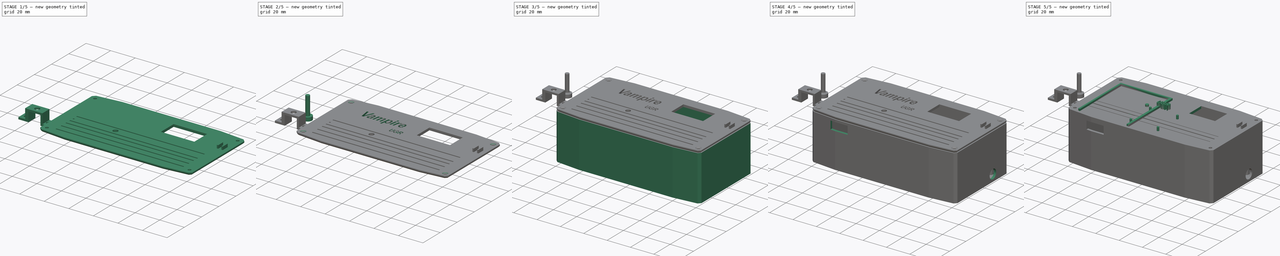
[diagram: build sequence overview — one tinted view per stage of 5, left to right]
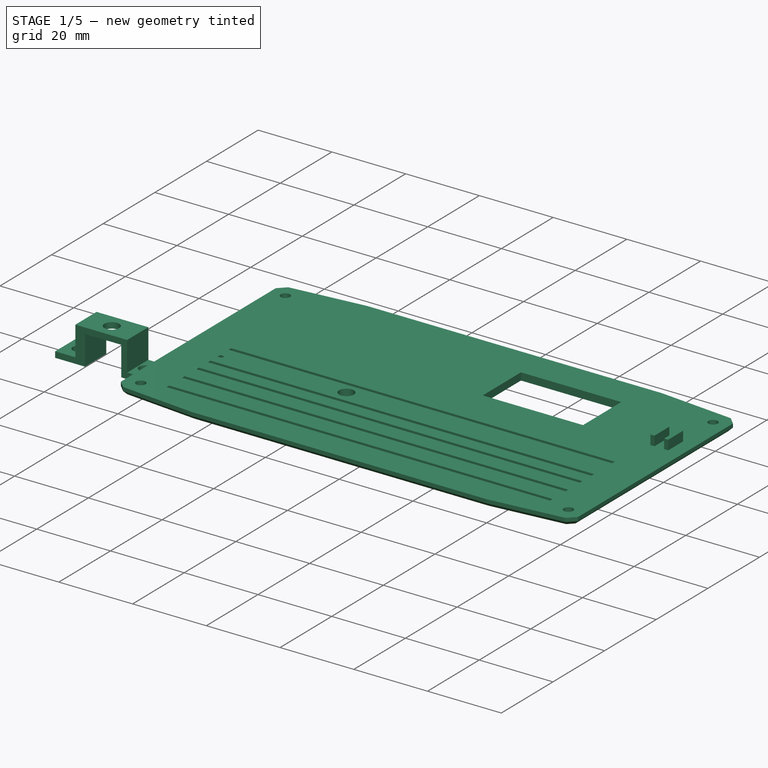
[diagram: stage 1 of 5 — iso view after this stage's code; geometry added in this stage tinted green]
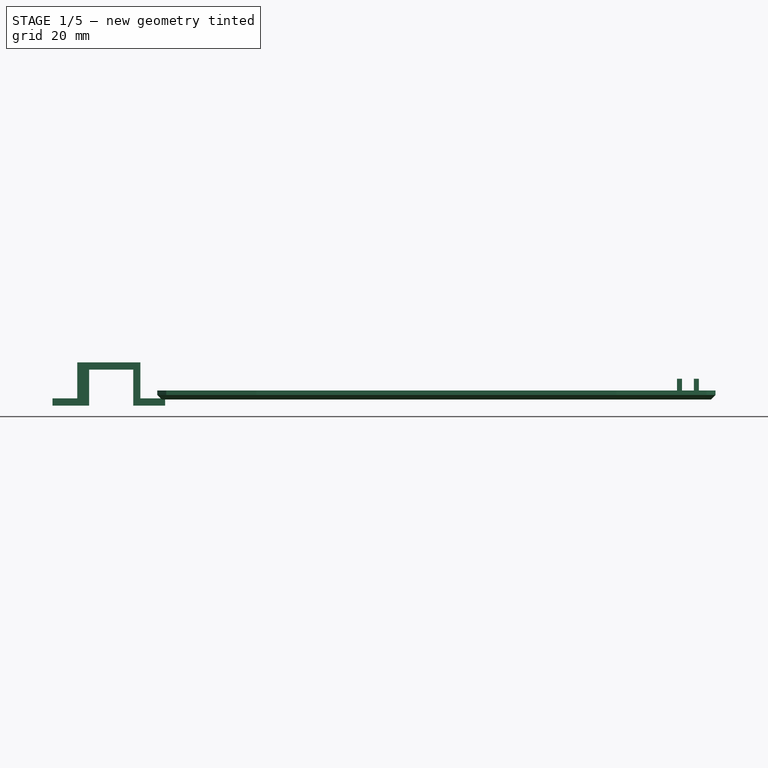
[diagram: stage 1 of 5 — front view after this stage's code; geometry added in this stage tinted green]
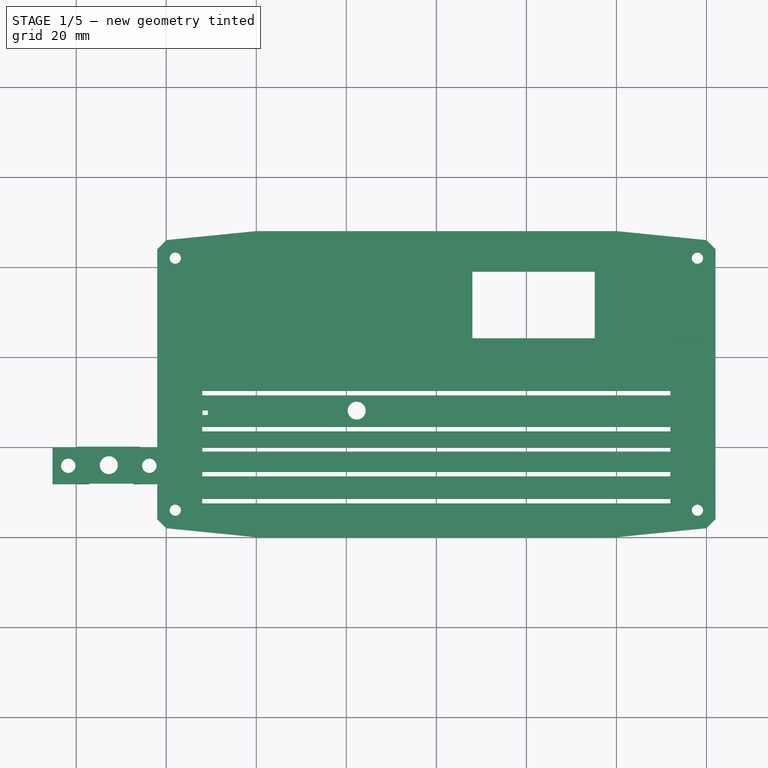
[diagram: stage 1 of 5 — top view after this stage's code; geometry added in this stage tinted green]
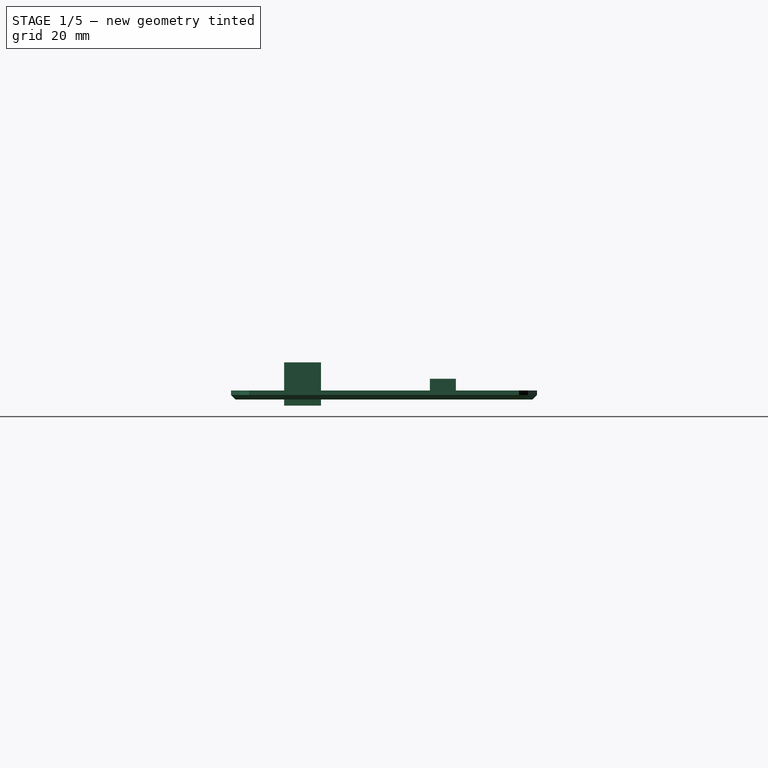
[diagram: stage 1 of 5 — right view after this stage's code; geometry added in this stage tinted green]
FCSTD DOCUMENT  (FreeCAD 0.20R26306 (Git))
Label: vampire_box_3q
License: Creative Commons Attribution-ShareAlike
LicenseURL: http://creativecommons.org/licenses/by-sa/4.0/
objects: Sketcher::SketchObject×21, PartDesign::Pad×16, PartDesign::Body×8, PartDesign::Plane×5, PartDesign::Pocket×5, PartDesign::Chamfer×4, Part::Part2DObjectPython×3, Part::Extrusion×3, PartDesign::Fillet×3, Spreadsheet::Sheet×2, Part::Cut×2, PartDesign::ShapeBinder×1, PartDesign::Thickness×1, App::Part×1
note: 101 computed .brp shape members not serialized (recipe doc carries the construction recipe); baked Part::Feature solids carry a one-line shape summary decoded from their .brp

FEATURE [Sketcher::SketchObject] Sketch
  FullyConstrained = false
  MapMode = 5
  Support = -> [XY_Plane]
  expr: Constraints[105] = Spreadsheet.screwR
  expr: Constraints[86] = Spreadsheet.tftWidth
  expr: Constraints[85] = Spreadsheet.tftHeight
  sketch-geometry (50):
    g0: LineSegment StartX=8 StartY=24.2 StartZ=0 EndX=35.2 EndY=24.2 EndZ=0
    g1: LineSegment StartX=35.2 StartY=24.2 StartZ=0 EndX=35.2 EndY=39 EndZ=0
    g2: LineSegment StartX=35.2 StartY=39 StartZ=0 EndX=8 EndY=39 EndZ=0
    g3: LineSegment StartX=8 StartY=39 StartZ=0 EndX=8 EndY=24.2 EndZ=0
    g4: LineSegment StartX=-40 StartY=48 StartZ=0 EndX=40 EndY=48 EndZ=0
    g5: LineSegment StartX=-40 StartY=-20 StartZ=0 EndX=40 EndY=-20 EndZ=0
    g6: LineSegment StartX=40 StartY=-20 StartZ=0 EndX=60 EndY=-18 EndZ=0
    g7: LineSegment StartX=-40 StartY=-20 StartZ=0 EndX=-60 EndY=-18 EndZ=0
    g8: LineSegment StartX=-40 StartY=48 StartZ=0 EndX=-60 EndY=46 EndZ=0
    g9: LineSegment StartX=40 StartY=48 StartZ=0 EndX=60 EndY=46 EndZ=0
    g10: LineSegment StartX=62 StartY=44 StartZ=0 EndX=62 EndY=-16 EndZ=0
    g11: LineSegment StartX=-62 StartY=-16 StartZ=0 EndX=-60 EndY=-18 EndZ=0
    g12: LineSegment StartX=-62 StartY=44 StartZ=0 EndX=-60 EndY=46 EndZ=0
    g13: LineSegment StartX=60 StartY=46 StartZ=0 EndX=62 EndY=44 EndZ=0
    g14: LineSegment StartX=62 StartY=-16 StartZ=0 EndX=60 EndY=-18 EndZ=0
    g15: LineSegment StartX=-52 StartY=-12.5 StartZ=0 EndX=52 EndY=-12.5 EndZ=0
    g16: LineSegment StartX=52 StartY=-12.5 StartZ=0 EndX=52 EndY=-11.5 EndZ=0
    g17: LineSegment StartX=52 StartY=-11.5 StartZ=0 EndX=-52 EndY=-11.5 EndZ=0
    g18: LineSegment StartX=-52 StartY=-11.5 StartZ=0 EndX=-52 EndY=-12.5 EndZ=0
    g19: LineSegment StartX=-52 StartY=-6.5 StartZ=0 EndX=52 EndY=-6.5 EndZ=0
    g20: LineSegment StartX=52 StartY=-6.5 StartZ=0 EndX=52 EndY=-5.5 EndZ=0
    g21: LineSegment StartX=52 StartY=-5.5 StartZ=0 EndX=-52 EndY=-5.5 EndZ=0
    g22: LineSegment StartX=-52 StartY=-5.5 StartZ=0 EndX=-52 EndY=-6.5 EndZ=0
    g23: LineSegment StartX=-52 StartY=-1 StartZ=0 EndX=52 EndY=-1 EndZ=0
    g24: LineSegment StartX=52 StartY=-1 StartZ=0 EndX=52 EndY=0 EndZ=0
    g25: LineSegment StartX=52 StartY=0 StartZ=0 EndX=-52 EndY=0 EndZ=0
    g26: LineSegment StartX=-52 StartY=0 StartZ=0 EndX=-52 EndY=-1 EndZ=0
    g27: LineSegment StartX=52 StartY=3.5 StartZ=0 EndX=-52 EndY=3.5 EndZ=0
    g28: LineSegment StartX=-52 StartY=3.5 StartZ=0 EndX=-52 EndY=4.5 EndZ=0
    g29: LineSegment StartX=-52 StartY=4.5 StartZ=0 EndX=52 EndY=4.5 EndZ=0
    g30: LineSegment StartX=52 StartY=4.5 StartZ=0 EndX=52 EndY=3.5 EndZ=0
    g31: LineSegment StartX=26.806 StartY=39 StartZ=0 EndX=26.806 EndY=48 EndZ=0
    g32: LineSegment StartX=52 StartY=4.5 StartZ=0 EndX=62 EndY=4.5 EndZ=0
    g33: LineSegment StartX=-62 StartY=44 StartZ=0 EndX=-62 EndY=-16 EndZ=0
    g34: LineSegment StartX=-52 StartY=4.5 StartZ=0 EndX=-62 EndY=4.5 EndZ=0
    g35: Circle CenterX=-58 CenterY=42 CenterZ=0 NormalX=0 NormalY=0 NormalZ=1 AngleXU=0 Radius=1.25
    g36: Circle CenterX=-58 CenterY=-14 CenterZ=0 NormalX=0 NormalY=0 NormalZ=1 AngleXU=0 Radius=1.25
    g37: Circle CenterX=58 CenterY=42 CenterZ=0 NormalX=0 NormalY=0 NormalZ=1 AngleXU=0 Radius=1.25
    g38: Circle CenterX=58 CenterY=-14 CenterZ=0 NormalX=0 NormalY=0 NormalZ=1 AngleXU=0 Radius=1.25
    g39: LineSegment StartX=52 StartY=11.5 StartZ=0 EndX=-52 EndY=11.5 EndZ=0
    g40: LineSegment StartX=-52 StartY=11.5 StartZ=0 EndX=-52 EndY=12.5 EndZ=0
    g41: LineSegment StartX=-52 StartY=12.5 StartZ=0 EndX=52 EndY=12.5 EndZ=0
    g42: LineSegment StartX=52 StartY=12.5 StartZ=0 EndX=52 EndY=11.5 EndZ=0
    g43: LineSegment StartX=52 StartY=12.5 StartZ=0 EndX=62 EndY=12.5 EndZ=0
    g44: LineSegment StartX=-52 StartY=12.5 StartZ=0 EndX=-62 EndY=12.5 EndZ=0
    g45: LineSegment StartX=-51.9473 StartY=7.12566 StartZ=0 EndX=-50.7702 EndY=7.12566 EndZ=0
    g46: LineSegment StartX=-50.7702 StartY=7.12566 StartZ=0 EndX=-50.7702 EndY=8.172 EndZ=0
    g47: LineSegment StartX=-50.7702 StartY=8.172 StartZ=0 EndX=-51.9473 EndY=8.172 EndZ=0
    g48: LineSegment StartX=-51.9473 StartY=8.172 StartZ=0 EndX=-51.9473 EndY=7.12566 EndZ=0
    g49: Circle CenterX=-17.7014 CenterY=8.12301 CenterZ=0 NormalX=0 NormalY=0 NormalZ=1 AngleXU=0 Radius=2
  constraints (142):
    c: Coincident(g0,g1)
    c: Coincident(g1,g2)
    c: Coincident(g2,g3)
    c: Coincident(g3,g0)
    c: Horizontal(g0)
    c: Horizontal(g2)
    c: Vertical(g1)
    c: Vertical(g3)
    c: Horizontal(g4)
    c: Coincident(g6,g5)
    c: Coincident(g7,g5)
    c: Coincident(g8,g4)
    c: Coincident(g9,g4)
    c: Vertical(g10)
    c: Coincident(g13,g10)
    c: Coincident(g14,g10)
    c: Coincident(g8,g12)
    c: Vertical(g4,g5)
    c: Vertical(g4,g5)
    c: Coincident(g11,g7)
    c: Coincident(g6,g14)
    c: Coincident(g13,g9)
    c: DistanceX(g8,g9) = 120
    c: DistanceY(g6,g9) = 64
    c: Horizontal(g6,g7)
    c: Vertical(g8,g7)
    c: Equal(g8,g9)
    c: Equal(g12,g11)
    c: Equal(g8,g7)
    c: Vertical(g9,g6)
    c: DistanceY(g8,g4) = 2
    c: Horizontal(g8,g9)
    c: Equal(g11,g14)
    c: Coincident(g15,g16)
    c: Coincident(g16,g17)
    c: Coincident(g17,g18)
    c: Coincident(g18,g15)
    c: Horizontal(g15)
    c: Horizontal(g17)
    c: Vertical(g16)
    c: Vertical(g18)
    c: Coincident(g19,g20)
    c: Coincident(g20,g21)
    c: Coincident(g21,g22)
    c: Coincident(g22,g19)
    c: Horizontal(g19)
    c: Horizontal(g21)
    c: Vertical(g20)
    c: Vertical(g22)
    c: Coincident(g23,g24)
    c: Coincident(g24,g25)
    c: Coincident(g25,g26)
    c: Coincident(g26,g23)
    c: Horizontal(g23)
    c: Horizontal(g25)
    c: Vertical(g24)
    c: Vertical(g26)
    c: PointOnObject(g24,g-1)
    c: Coincident(g27,g28)
    c: Coincident(g28,g29)
    c: Coincident(g29,g30)
    c: Coincident(g30,g27)
    c: Horizontal(g27)
    c: Horizontal(g29)
    c: Vertical(g28)
    c: Vertical(g30)
    c: DistanceY(g27,g28) = 1
    c: DistanceY(g23,g25) = 1
    c: DistanceY(g19,g21) = 1
    c: DistanceY(g15,g17) = 1
    c: DistanceY(g25,g27) = 3.5
    c: DistanceY(g21,g23) = 4.5
    c: DistanceY(g17,g19) = 5
    c: PointOnObject(g31,g4)
    c: Vertical(g31)
    c: Vertical(g27,g23)
    c: Vertical(g23,g19)
    c: Vertical(g27,g25)
    c: Vertical(g23,g21)
    c: Coincident(g32,g29)
    c: PointOnObject(g32,g10)
    c: Horizontal(g32)
    c: Vertical(g19,g17)
    c: Vertical(g19,g16)
    c: DistanceX(g4,g9) = 20
    c: DistanceY(g3,g3) = 14.8
    c: DistanceX(g2,g2) = 27.2
    c: DistanceX(g12,g2) = 70
    c: DistanceY(g1,g9) = 7
    c: Vertical(g12,g11)
    c: Angle(g13,g10) = 2.35619
    c: Angle(g10,g14) = 2.35619
    c: Horizontal(g11,g10)
    c: DistanceY(g6,g10) = 2
    c: Symmetric(g5,g5,g-2)
    c: Coincident(g33,g12)
    c: Coincident(g33,g11)
    c: Coincident(g34,g28)
    c: PointOnObject(g34,g33)
    c: Horizontal(g34)
    c: Equal(g34,g32)
    c: DistanceX(g34,g34) = 10
    c: Equal(g35,g37)
    c: Equal(g35,g38)
    c: Equal(g35,g36)
    c: Radius(g35) = 1.25
    c: DistanceX(g12,g35) = 4
    c: DistanceY(g35,g8) = 4
    c: Vertical(g35,g36)
    c: Horizontal(g35,g37)
    c: DistanceX(g37,g10) = 4
    c: Vertical(g37,g38)
    c: Horizontal(g36,g38)
    c: DistanceY(g7,g36) = 4
    c: Coincident(g39,g40)
    c: Coincident(g40,g41)
    c: Coincident(g41,g42)
    c: Coincident(g42,g39)
    c: Horizontal(g39)
    c: Horizontal(g41)
    c: Vertical(g40)
    c: Vertical(g42)
    c: DistanceY(g39,g40) = 1
    c: Coincident(g43,g41)
    c: Horizontal(g43)
    c: Coincident(g44,g40)
    c: Horizontal(g44)
    c: Equal(g44,g43)
    c: Equal(g34,g44) = 10
    c: DistanceY(g29,g39) = 7
    c: Vertical(g29,g39)
    c: Vertical(g28,g39)
    c: DistanceY(g5,g6) = 2
    c: Coincident(g45,g46)
    c: Coincident(g46,g47)
    c: Coincident(g47,g48)
    c: Coincident(g48,g45)
    c: Horizontal(g45)
    c: Horizontal(g47)
    c: Vertical(g46)
    c: Vertical(g48)
    c: Diameter(g49) = 4
FEATURE [PartDesign::Pad] Pad
  Direction = (0,0,1)
  Length = 2
  Length2 = 100
  Profile = -> Sketch
  ReferenceAxis = -> Sketch [N_Axis]
  Refine = true
  Type = 0
FEATURE [PartDesign::Chamfer] Chamfer
  Angle = 45
  Base = -> Pad [Edge35,Edge3,Edge6,Edge9,Edge12,Edge15,Edge18,Edge21,Edge24,Edge27,Edge30,Edge33]
  BaseFeature = -> Pad
  ChamferType = 0
  FlipDirection = false
  Refine = true
  Size = 1
  Size2 = 1
  SupportTransform = false
FEATURE [Sketcher::SketchObject] Sketch023
  FullyConstrained = false
  MapMode = 5
  Support = -> [XY_Plane010]
  sketch-geometry (6):
    g0: ArcOfCircle CenterX=55.8804 CenterY=33.7439 CenterZ=0 NormalX=0 NormalY=0 NormalZ=1 AngleXU=0 Radius=3.42312 StartAngle=-9e-16 EndAngle=3.14159
    g1: ArcOfCircle CenterX=55.8035 CenterY=20.9958 CenterZ=0 NormalX=0 NormalY=0 NormalZ=1 AngleXU=0 Radius=3.5 StartAngle=3.14159 EndAngle=6.28319
    g2: LineSegment StartX=52.4573 StartY=33.7439 StartZ=0 EndX=52.3035 EndY=20.9958 EndZ=0
    g3: LineSegment StartX=59.3035 StartY=33.7439 StartZ=0 EndX=59.3035 EndY=20.9958 EndZ=0
    g4: Circle CenterX=55.8804 CenterY=33.7439 CenterZ=0 NormalX=0 NormalY=0 NormalZ=1 AngleXU=0 Radius=1.64099
    g5: Circle CenterX=55.8035 CenterY=20.9958 CenterZ=0 NormalX=0 NormalY=0 NormalZ=1 AngleXU=0 Radius=1.66793
  constraints (12):
    c: Coincident(g2,g0)
    c: Coincident(g2,g1)
    c: Coincident(g3,g0)
    c: Coincident(g3,g1)
    c: Vertical(g3)
    c: Horizontal(g1,g1)
    c: Horizontal(g1,g1)
    c: Horizontal(g0,g0)
    c: Horizontal(g0,g0)
    c: Coincident(g4,g0)
    c: Coincident(g5,g1)
    c: Radius(g1) = 3.5
FEATURE [PartDesign::Pad] Pad017
  Direction = (0,0,1)
  Length = 2
  Length2 = 100
  Profile = -> Sketch023
  ReferenceAxis = -> Sketch023 [N_Axis]
  Refine = true
  Type = 0
FEATURE [Sketcher::SketchObject] Sketch024
  FullyConstrained = false
  MapMode = 5
  Support = -> [XY_Plane010]
  sketch-geometry (8):
    g0: LineSegment StartX=53.4618 StartY=24.2006 StartZ=0 EndX=54.5699 EndY=24.2006 EndZ=0
    g1: LineSegment StartX=54.5699 StartY=24.2006 StartZ=0 EndX=54.5699 EndY=29.9657 EndZ=0
    g2: LineSegment StartX=54.5699 StartY=29.9657 StartZ=0 EndX=53.4618 EndY=29.9657 EndZ=0
    g3: LineSegment StartX=53.4618 StartY=29.9657 StartZ=0 EndX=53.4618 EndY=24.2006 EndZ=0
    g4: LineSegment StartX=57.2071 StartY=29.9657 StartZ=0 EndX=58.3152 EndY=29.9657 EndZ=0
    g5: LineSegment StartX=58.3152 StartY=29.9657 StartZ=0 EndX=58.3152 EndY=24.2006 EndZ=0
    g6: LineSegment StartX=58.3152 StartY=24.2006 StartZ=0 EndX=57.2071 EndY=24.2006 EndZ=0
    g7: LineSegment StartX=57.2071 StartY=24.2006 StartZ=0 EndX=57.2071 EndY=29.9657 EndZ=0
  constraints (19):
    c: Coincident(g0,g1)
    c: Coincident(g1,g2)
    c: Coincident(g2,g3)
    c: Coincident(g3,g0)
    c: Horizontal(g0)
    c: Horizontal(g2)
    c: Vertical(g1)
    c: Vertical(g3)
    c: Coincident(g4,g5)
    c: Coincident(g5,g6)
    c: Coincident(g6,g7)
    c: Coincident(g7,g4)
    c: Horizontal(g4)
    c: Horizontal(g6)
    c: Vertical(g5)
    c: Vertical(g7)
    c: Horizontal(g1,g4)
    c: Horizontal(g0,g6)
    c: Equal(g2,g4)
FEATURE [PartDesign::Pad] Pad018
  BaseFeature = -> Pad017
  Direction = (0,0,1)
  Length = 4.6
  Length2 = 100
  Profile = -> Sketch024
  ReferenceAxis = -> Sketch024 [N_Axis]
  Refine = true
  Type = 0
FEATURE [PartDesign::Chamfer] Chamfer004
  Angle = 45
  Base = -> Pad018 [Edge24,Edge26]
  BaseFeature = -> Pad018
  ChamferType = 0
  FlipDirection = false
  Refine = true
  Size = 0.5
  Size2 = 1
  SupportTransform = false
FEATURE [PartDesign::Body] Body006  label="presa"
  Group = -> [Sketch023,Pad017,Sketch024,Pad018,Chamfer004]
  Origin = -> Origin008
  Tip = -> Chamfer004
FEATURE [Sketcher::SketchObject] Sketch025
  FullyConstrained = false
  MapMode = 5
  Placement = pos=(0,0,0) rot=(1,0,0;1.5708rad)
  Support = -> [XZ_Plane009]
  sketch-geometry (12):
    g0: LineSegment StartX=-77.1473 StartY=-1.35505 StartZ=0 EndX=-85.2663 EndY=-1.35505 EndZ=0
    g1: LineSegment StartX=-85.2663 StartY=-1.35505 StartZ=0 EndX=-85.2663 EndY=0.244953 EndZ=0
    g2: LineSegment StartX=-85.2663 StartY=0.244953 StartZ=0 EndX=-79.7853 EndY=0.244953 EndZ=0
    g3: LineSegment StartX=-79.7853 StartY=0.244953 StartZ=0 EndX=-79.7853 EndY=8.24495 EndZ=0
    g4: LineSegment StartX=-79.7853 StartY=8.24495 StartZ=0 EndX=-65.7473 EndY=8.24495 EndZ=0
    g5: LineSegment StartX=-65.7473 StartY=8.24495 StartZ=0 EndX=-65.7473 EndY=0.244953 EndZ=0
    g6: LineSegment StartX=-65.7473 StartY=0.244953 StartZ=0 EndX=-60.2663 EndY=0.244953 EndZ=0
    g7: LineSegment StartX=-60.2663 StartY=0.244953 StartZ=0 EndX=-60.2663 EndY=-1.35505 EndZ=0
    g8: LineSegment StartX=-60.2663 StartY=-1.35505 StartZ=0 EndX=-67.3473 EndY=-1.35505 EndZ=0
    g9: LineSegment StartX=-67.3473 StartY=-1.35505 StartZ=0 EndX=-67.3473 EndY=6.64495 EndZ=0
    g10: LineSegment StartX=-67.3473 StartY=6.64495 StartZ=0 EndX=-77.1473 EndY=6.64495 EndZ=0
    g11: LineSegment StartX=-77.1473 StartY=6.64495 StartZ=0 EndX=-77.1473 EndY=-1.35505 EndZ=0
  constraints (33):
    c: Horizontal(g0)
    c: Coincident(g1,g0)
    c: Coincident(g2,g1)
    c: Horizontal(g2)
    c: Coincident(g3,g2)
    c: Vertical(g3)
    c: Coincident(g4,g3)
    c: Horizontal(g4)
    c: Coincident(g5,g4)
    c: Vertical(g5)
    c: Coincident(g6,g5)
    c: Horizontal(g6)
    c: Coincident(g7,g6)
    c: Vertical(g7)
    c: Coincident(g8,g7)
    c: Horizontal(g8)
    c: Coincident(g9,g8)
    c: Vertical(g9)
    c: Coincident(g10,g9)
    c: Horizontal(g10)
    c: Coincident(g11,g10)
    c: Vertical(g11)
    c: Coincident(g11,g0)
    c: Horizontal(g0,g8)
    c: DistanceY(g7,g7) = 1.6
    c: Vertical(g0,g1)
    c: Horizontal(g5,g2)
    c: DistanceX(g8,g5) = 1.6
    c: DistanceY(g9,g4) = 1.6
    c: DistanceX(g10,g10) = 9.8
    c: DistanceX(g0,g7) = 25
    c: Equal(g2,g6)
    c: DistanceY(g11,g11) = 8
FEATURE [PartDesign::Pad] Pad019
  Direction = (0,-1,-2e-16)
  Length = 8.2
  Length2 = 100
  Placement = pos=(0,0,0) rot=(1,0,0;1.5708rad)
  Profile = -> Sketch025
  ReferenceAxis = -> Sketch025 [N_Axis]
  Refine = true
  Type = 0
FEATURE [Sketcher::SketchObject] Sketch026
  ExternalGeometry = -> [Pad019]
  FullyConstrained = false
  MapMode = 5
  Placement = pos=(0,0,8.24495) rot=(0,0,1;3.14159rad)
  Support = -> [Pad019]
  sketch-geometry (10):
    g0: Circle CenterX=72.7663 CenterY=4.1 CenterZ=0 NormalX=0 NormalY=0 NormalZ=1 AngleXU=0 Radius=2
    g1: Circle CenterX=63.7663 CenterY=4.1 CenterZ=0 NormalX=0 NormalY=0 NormalZ=1 AngleXU=0 Radius=1.6
    g2: Circle CenterX=81.7663 CenterY=4.1 CenterZ=0 NormalX=0 NormalY=0 NormalZ=1 AngleXU=0 Radius=1.6
    g3: LineSegment StartX=60.2663 StartY=8.2 StartZ=0 EndX=85.2663 EndY=8.2 EndZ=0
    g4: LineSegment StartX=60.2663 StartY=0 StartZ=0 EndX=85.2663 EndY=0 EndZ=0
    g5: LineSegment StartX=72.7663 StartY=4.1 StartZ=0 EndX=72.7663 EndY=0 EndZ=0
    g6: LineSegment StartX=72.7663 StartY=4.1 StartZ=0 EndX=72.7663 EndY=8.2 EndZ=0
    g7: LineSegment StartX=81.7663 StartY=4.1 StartZ=0 EndX=85.2663 EndY=4.1 EndZ=0
    g8: LineSegment StartX=72.7663 StartY=4.1 StartZ=0 EndX=79.7853 EndY=4.1 EndZ=0
    g9: LineSegment StartX=72.7663 StartY=4.1 StartZ=0 EndX=65.7473 EndY=4.1 EndZ=0
  constraints (26):
    c: Coincident(g3,g-3)
    c: Coincident(g3,g-4)
    c: Coincident(g4,g-3)
    c: Coincident(g4,g-4)
    c: Coincident(g5,g0)
    c: PointOnObject(g5,g4)
    c: Vertical(g5)
    c: Coincident(g6,g0)
    c: PointOnObject(g6,g3)
    c: Vertical(g6)
    c: Equal(g6,g5)
    c: Horizontal(g0,g2)
    c: Horizontal(g0,g1)
    c: PointOnObject(g9,g-5)
    c: Diameter(g0) = 4
    c: Diameter(g1) = 3.2
    c: Coincident(g7,g2)
    c: PointOnObject(g7,g-4)
    c: Horizontal(g7)
    c: PointOnObject(g8,g-6)
    c: Diameter(g2) = 3.2
    c: Coincident(g8,g0)
    c: Coincident(g9,g0)
    c: Equal(g9,g8)
    c: DistanceX(g1,g0) = 9
    c: DistanceX(g0,g2) = 9
FEATURE [PartDesign::Pocket] Pocket004
  BaseFeature = -> Pad019
  Length = 20
  Length2 = 100
  Placement = pos=(0,0,0) rot=(1,0,0;1.5708rad)
  Profile = -> Sketch026
  Refine = true
  Type = 0
FEATURE [PartDesign::Body] Body007  label="pieza W"
  Group = -> [Sketch025,Pad019,Sketch026,Pocket004]
  Origin = -> Origin009
  Tip = -> Pocket004
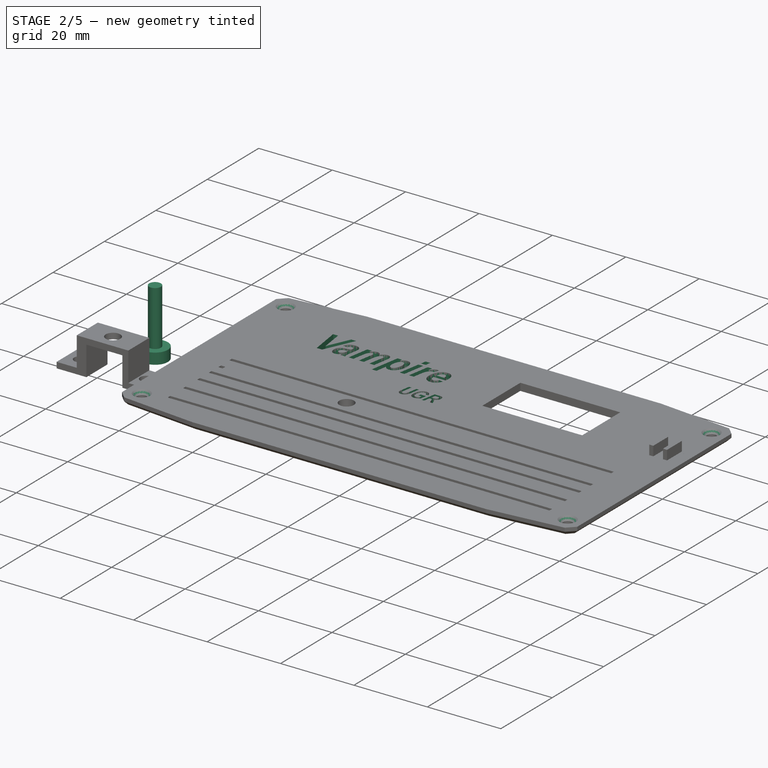
[diagram: stage 2 of 5 — iso view after this stage's code; geometry added in this stage tinted green]
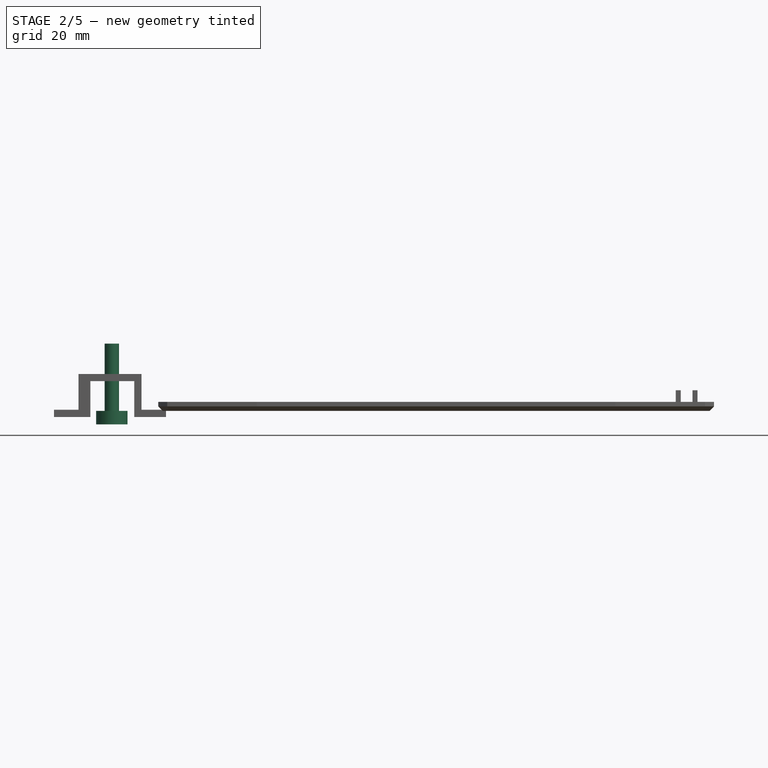
[diagram: stage 2 of 5 — front view after this stage's code; geometry added in this stage tinted green]
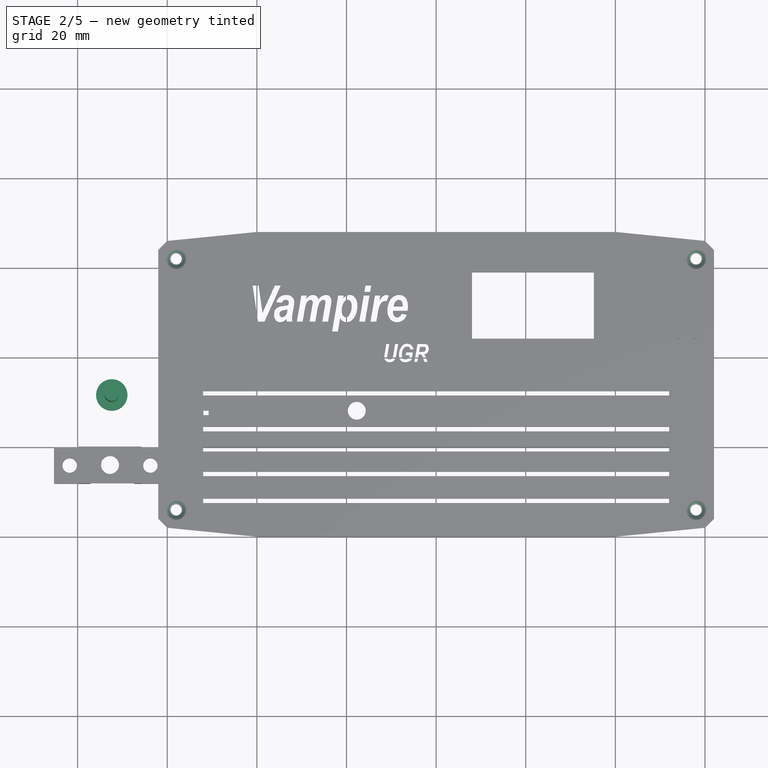
[diagram: stage 2 of 5 — top view after this stage's code; geometry added in this stage tinted green]
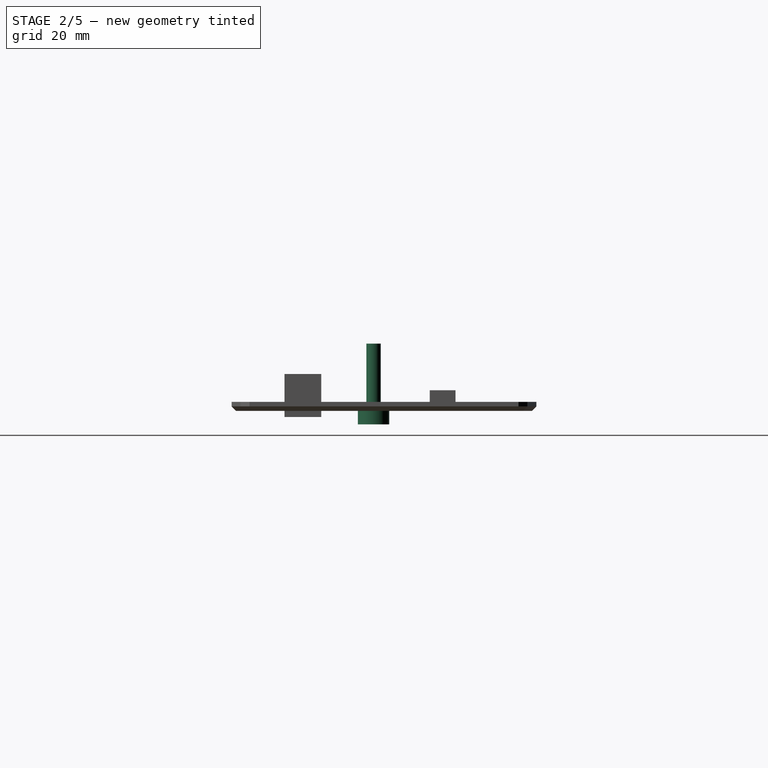
[diagram: stage 2 of 5 — right view after this stage's code; geometry added in this stage tinted green]
FEATURE [PartDesign::Plane] DatumPlane
  Length = 143.028
  MapMode = 2
  ResizeMode = 0
  Width = 92.0284
FEATURE [Part::Part2DObjectPython] ShapeString  # Draft 2D object (typed FeaturePython)
  FontFile = <userpath>/Nextcloud/sincro2/proyectos/Medidor_consumos/medidor_v2/arial_narrow_bold_italic/arial.ttf
  MakeFace = true
  Placement = pos=(-10,0,0) rot=(0,0,1;0rad)
  Size = 4
  String = Vampire
  Tracking = 0
FEATURE [Part::Extrusion] Extrude
  Base = -> ShapeString
  Dir = (0,0,1)
  DirMode = 2
  FaceMakerClass = Part::FaceMakerBullseye
  LengthFwd = 2
  LengthRev = 0
  Placement = pos=(-32,28,0) rot=(0,0,1;0rad)
  Solid = true
  Symmetric = false
FEATURE [Part::Part2DObjectPython] ShapeString001  # Draft 2D object (typed FeaturePython)
  FontFile = <userpath>/Nextcloud/sincro2/proyectos/Medidor_consumos/medidor_v2/arial_narrow_bold_italic/arial.ttf
  MakeFace = true
  Size = 2
  String = UGR
  Tracking = 0
FEATURE [Part::Extrusion] Extrude001
  Base = -> ShapeString001
  Dir = (0,0,1)
  DirMode = 2
  FaceMakerClass = Part::FaceMakerBullseye
  LengthFwd = 10
  LengthRev = 0
  Placement = pos=(-12,19,-4) rot=(0,0,1;0rad)
  Solid = false
  Symmetric = false
FEATURE [PartDesign::Body] Body003  label="Bottom"
  Group = -> [Sketch006,ShapeBinder,Pad006,Thickness,Sketch009,Pad007,Sketch010,Pad008,DatumPlane001,DatumPlane002,Sketch012,Pocket,Sketch013,Pocket001,DatumPlane003,Sketch014,Pocket002,Sketch015,Pad010,Sketch016,Pad011,Fillet,Fillet001,Chamfer002]
  Origin = -> Origin003
  Tip = -> Chamfer002
FEATURE [Sketcher::SketchObject] Sketch020
  FullyConstrained = false
  MapMode = 5
  Support = -> [XY_Plane009]
  sketch-geometry (1):
    g0: Circle CenterX=-72.3727 CenterY=11.6753 CenterZ=0 NormalX=0 NormalY=0 NormalZ=1 AngleXU=0 Radius=1.6
  constraints (1):
    c: Radius(g0) = 1.6
FEATURE [PartDesign::Pad] Pad015
  Direction = (0,0,1)
  Length = 15
  Length2 = 100
  Profile = -> Sketch020
  ReferenceAxis = -> Sketch020 [N_Axis]
  Refine = true
  Type = 0
FEATURE [Sketcher::SketchObject] Sketch021
  ExternalGeometry = -> [Pad015]
  FullyConstrained = true
  MapMode = 5
  Support = -> [XY_Plane009]
  sketch-geometry (1):
    g0: Circle CenterX=-72.3727 CenterY=11.6753 CenterZ=0 NormalX=0 NormalY=0 NormalZ=1 AngleXU=0 Radius=3.5
  constraints (2):
    c: Coincident(g0,g-3)
    c: Radius(g0) = 3.5
FEATURE [PartDesign::Pad] Pad016
  BaseFeature = -> Pad015
  Direction = (0,0,1)
  Length = 3
  Length2 = 100
  Profile = -> Sketch021
  ReferenceAxis = -> Sketch021 [N_Axis]
  Refine = true
  Reversed = true
  Type = 0
FEATURE [PartDesign::Body] Body005  label="pulsador"
  Group = -> [Sketch020,Pad015,Sketch021,Pad016,DatumPlane004,Sketch022,Pocket003,Fillet002]
  Origin = -> Origin007
  Tip = -> Fillet002
FEATURE [PartDesign::Chamfer] Chamfer003
  Angle = 45
  Base = -> Chamfer [Edge49,Edge46,Edge47,Edge48]
  BaseFeature = -> Chamfer
  ChamferType = 0
  FlipDirection = false
  Refine = true
  Size = 1
  Size2 = 1
  SupportTransform = false
FEATURE [PartDesign::Body] Body  label="Cover"
  Group = -> [Sketch,Pad,DatumPlane,Chamfer,Chamfer003]
  Origin = -> Origin
  Tip = -> Chamfer003
FEATURE [Part::Cut] Cut
  Base = -> Body
  Refine = true
  Tool = -> Extrude
FEATURE [Part::Cut] Cut001
  Base = -> Cut
  Refine = true
  Tool = -> Extrude001
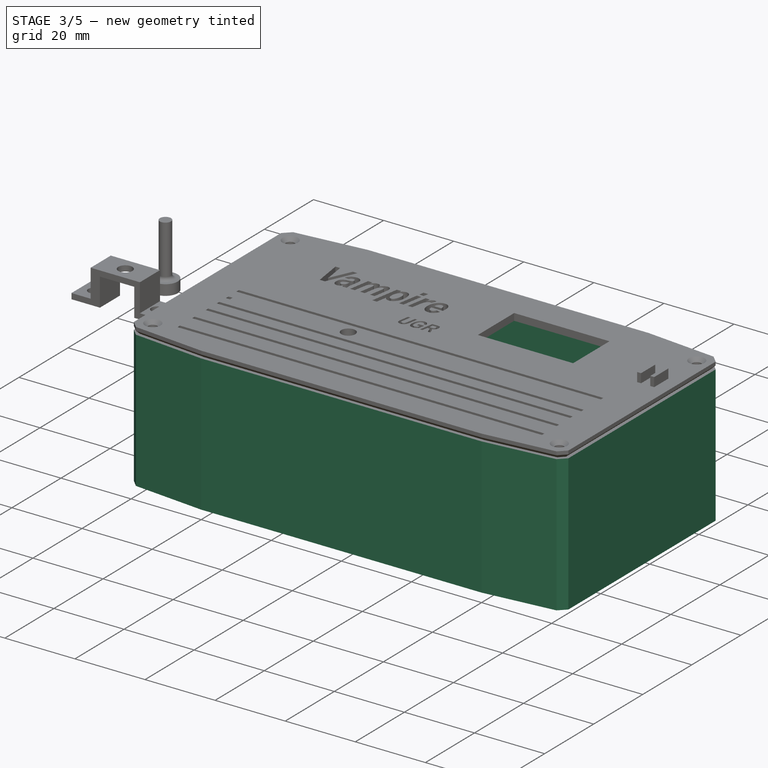
[diagram: stage 3 of 5 — iso view after this stage's code; geometry added in this stage tinted green]
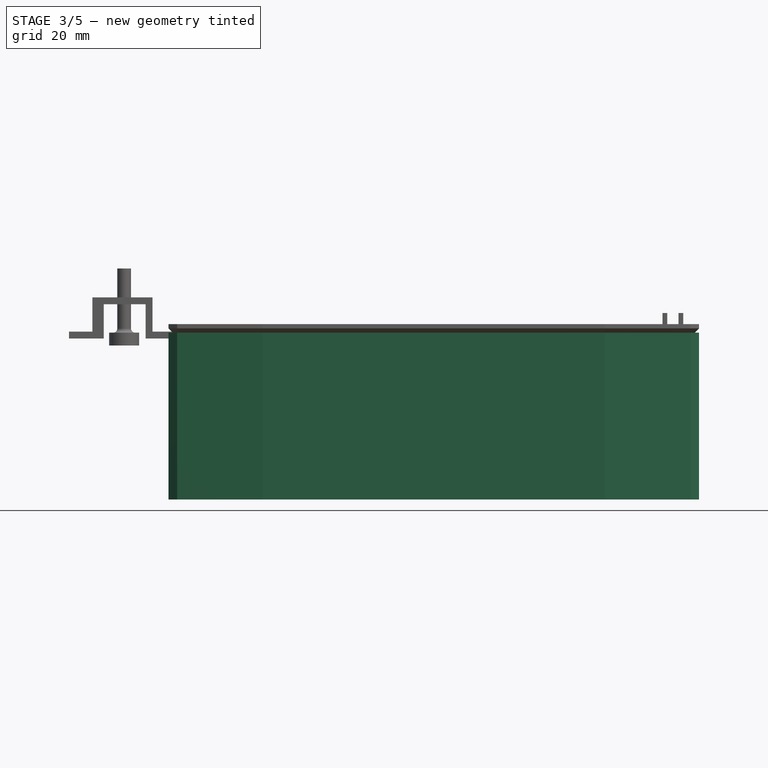
[diagram: stage 3 of 5 — front view after this stage's code; geometry added in this stage tinted green]
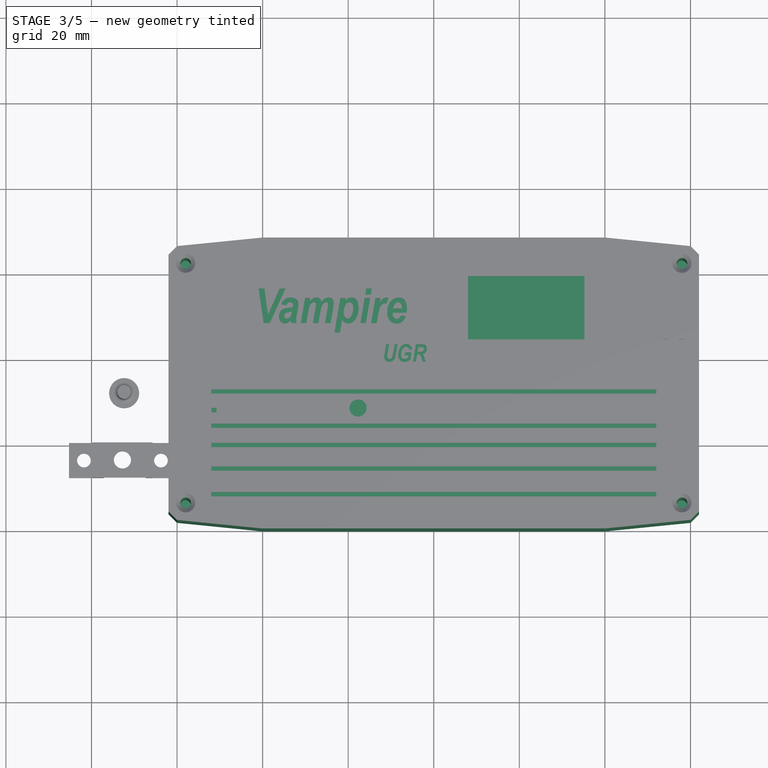
[diagram: stage 3 of 5 — top view after this stage's code; geometry added in this stage tinted green]
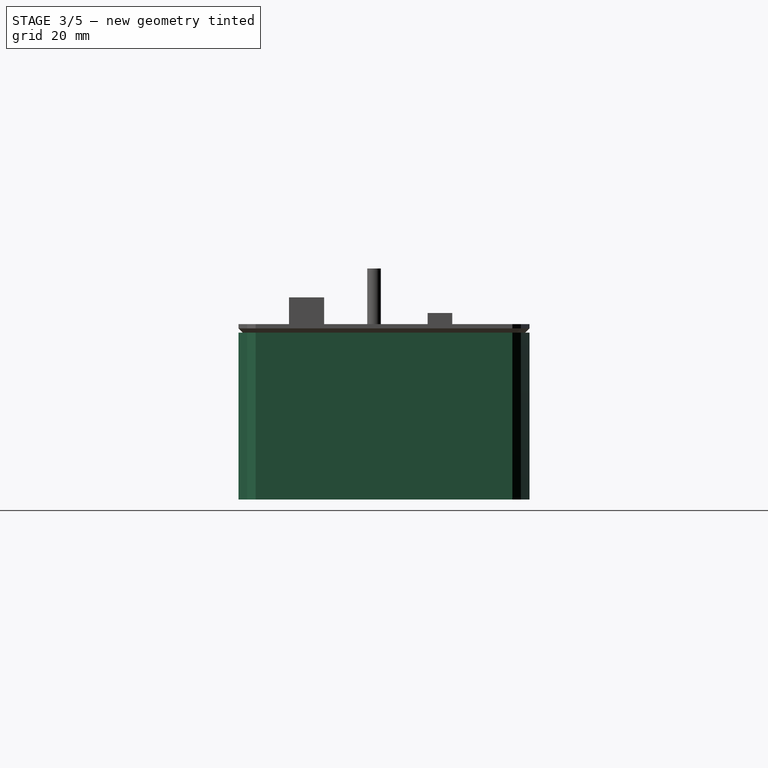
[diagram: stage 3 of 5 — right view after this stage's code; geometry added in this stage tinted green]
FEATURE [PartDesign::Body] Body002  label="tft_test"
  Group = -> [Sketch004,Pad004,Sketch005,Pad005]
  Origin = -> Origin002
  Tip = -> Pad005
FEATURE [PartDesign::ShapeBinder] ShapeBinder
  Support = -> [Pad]
  TraceSupport = false
FEATURE [Sketcher::SketchObject] Sketch006
  ExternalGeometry = -> [ShapeBinder]
  FullyConstrained = false
  MapMode = 5
  Support = -> [XY_Plane003]
  sketch-geometry (12):
    g0: LineSegment StartX=-60 StartY=46 StartZ=0 EndX=-40 EndY=48 EndZ=0
    g1: LineSegment StartX=-40 StartY=48 StartZ=0 EndX=40 EndY=48 EndZ=0
    g2: LineSegment StartX=40 StartY=48 StartZ=0 EndX=60 EndY=46 EndZ=0
    g3: LineSegment StartX=60 StartY=46 StartZ=0 EndX=62 EndY=44 EndZ=0
    g4: LineSegment StartX=62 StartY=44 StartZ=0 EndX=62 EndY=-16 EndZ=0
    g5: LineSegment StartX=62 StartY=-16 StartZ=0 EndX=60 EndY=-18 EndZ=0
    g6: LineSegment StartX=60 StartY=-18 StartZ=0 EndX=40 EndY=-20 EndZ=0
    g7: LineSegment StartX=40 StartY=-20 StartZ=0 EndX=-40 EndY=-20 EndZ=0
    g8: LineSegment StartX=-40 StartY=-20 StartZ=0 EndX=-60 EndY=-18 EndZ=0
    g9: LineSegment StartX=-60 StartY=-18 StartZ=0 EndX=-62 EndY=-16 EndZ=0
    g10: LineSegment StartX=-62 StartY=-16 StartZ=0 EndX=-62 EndY=44 EndZ=0
    g11: LineSegment StartX=-62 StartY=44 StartZ=0 EndX=-60 EndY=46 EndZ=0
  constraints (12):
    c: Coincident(g0,g1)
    c: Coincident(g1,g2)
    c: Coincident(g2,g3)
    c: Coincident(g3,g4)
    c: Coincident(g4,g5)
    c: Coincident(g5,g6)
    c: Coincident(g6,g7)
    c: Coincident(g7,g8)
    c: Coincident(g8,g9)
    c: Coincident(g9,g10)
    c: Coincident(g10,g11)
    c: Coincident(g11,g0)
FEATURE [PartDesign::Pad] Pad006
  Direction = (0,0,1)
  Length = 39
  Length2 = 100
  Profile = -> Sketch006
  ReferenceAxis = -> Sketch006 [N_Axis]
  Refine = true
  Reversed = true
  Type = 0
FEATURE [PartDesign::Thickness] Thickness
  Base = -> Pad006 [Face13]
  BaseFeature = -> Pad006
  Intersection = false
  Join = 0
  Mode = 0
  Refine = true
  Reversed = true
  SupportTransform = false
  Value = 2
FEATURE [Spreadsheet::Sheet] Spreadsheet001
  cells = A3=tft Height; B3(tftHeight)==14.8mm; A4=tft Width; B4(tftWidth)==27mm; A5=screw X sep; B5(sXsep)==23.2mm; A6=screw Y sep ; B6(sYsep)==23.7mm; A7=Internal screw X ; B7(isX)==0.9mm; A8=External screw Y; B8(esY)==1.6mm; A9=External rad; B9(erad)==0.9mm; A11=screw diam; B11==2mm; A12=screw rad; B12(screwR)==B11 / 2 + 0.25mm
FEATURE [PartDesign::Plane] DatumPlane001
  Length = 110.443
  MapMode = 5
  Placement = pos=(0,0,-37) rot=(0,0,1;0rad)
  ResizeMode = 0
  Support = -> [Thickness]
  Width = 83.1836
FEATURE [Sketcher::SketchObject] Sketch009
  FullyConstrained = false
  MapMode = 5
  Placement = pos=(0,0,-37) rot=(0,0,1;0rad)
  Support = -> [DatumPlane001]
  sketch-geometry (17):
    g0: ArcOfCircle CenterX=-60 CenterY=44 CenterZ=0 NormalX=0 NormalY=0 NormalZ=1 AngleXU=0 Radius=6.5 StartAngle=4.71239 EndAngle=6.52674
    g1: ArcOfCircle CenterX=-60 CenterY=-16.2765 CenterZ=0 NormalX=0 NormalY=0 NormalZ=1 AngleXU=0 Radius=6.5 StartAngle=6.09959 EndAngle=7.85398
    g2: ArcOfCircle CenterX=60.015 CenterY=-16 CenterZ=0 NormalX=0 NormalY=0 NormalZ=1 AngleXU=0 Radius=6.5 StartAngle=1.5731 EndAngle=3.33639
    g3: ArcOfCircle CenterX=60 CenterY=44 CenterZ=0 NormalX=0 NormalY=0 NormalZ=1 AngleXU=0 Radius=6.5 StartAngle=2.97483 EndAngle=4.71239
    g4: LineSegment StartX=-53.6092 StartY=-17.4632 StartZ=0 EndX=-60 EndY=-16.2765 EndZ=0
    g5: LineSegment StartX=-60 StartY=-16.2765 StartZ=0 EndX=-60 EndY=-9.77653 EndZ=0
    g6: LineSegment StartX=60 StartY=-9.50002 StartZ=0 EndX=60.015 EndY=-9.49998 EndZ=0
    g7: LineSegment StartX=60.015 StartY=-9.49998 StartZ=0 EndX=60.015 EndY=-16 EndZ=0
    g8: LineSegment StartX=60.015 StartY=-16 StartZ=0 EndX=53.6379 EndY=-17.2582 EndZ=0
    g9: LineSegment StartX=-60 StartY=44 StartZ=0 EndX=-53.6918 EndY=45.5675 EndZ=0
    g10: LineSegment StartX=-60 StartY=44 StartZ=0 EndX=-60 EndY=37.5 EndZ=0
    g11: LineSegment StartX=53.5902 StartY=45.0789 StartZ=0 EndX=60 EndY=44 EndZ=0
    g12: LineSegment StartX=60 StartY=44 StartZ=0 EndX=60 EndY=37.5 EndZ=0
    g13: Circle CenterX=58 CenterY=42 CenterZ=0 NormalX=0 NormalY=0 NormalZ=1 AngleXU=0 Radius=1.25
    g14: Circle CenterX=-58 CenterY=42 CenterZ=0 NormalX=0 NormalY=0 NormalZ=1 AngleXU=0 Radius=1.25
    g15: Circle CenterX=-58 CenterY=-14 CenterZ=0 NormalX=0 NormalY=0 NormalZ=1 AngleXU=0 Radius=1.25
    g16: Circle CenterX=58 CenterY=-14 CenterZ=0 NormalX=0 NormalY=0 NormalZ=1 AngleXU=0 Radius=1.25
  constraints (37):
    c: Coincident(g4,g5)
    c: Coincident(g5,g1)
    c: Tangent(g2,g6) = 1.5708
    c: Tangent(g6,g1)
    c: Coincident(g6,g7)
    c: Coincident(g7,g2)
    c: Vertical(g7)
    c: Coincident(g7,g8)
    c: Coincident(g8,g2)
    c: Coincident(g9,g0)
    c: Coincident(g10,g9)
    c: Coincident(g10,g0)
    c: Vertical(g10)
    c: Coincident(g11,g3)
    c: Coincident(g11,g3)
    c: Coincident(g12,g3)
    c: Coincident(g12,g3)
    c: Vertical(g12)
    c: Coincident(g1,g4)
    c: Equal(g14,g13)
    c: Equal(g14,g16)
    c: Equal(g14,g15)
    c: Radius(g14) = 1.25
    c: Equal(g0,g3)
    c: Equal(g0,g2)
    c: Equal(g0,g1)
    c: Vertical(g5)
    c: Radius(g1) = 6.5
    c: Coincident(g9,g0)
    c: DistanceX(g14,g0) = -2
    c: DistanceY(g14,g0) = 2
    c: DistanceX(g3,g13) = -2
    c: DistanceY(g13,g3) = 2
    c: Vertical(g3,g2)
    c: DistanceY(g2,g16) = 2
    c: Coincident(g4,g1)
    c: Vertical(g0,g1)
FEATURE [PartDesign::Pad] Pad007  label="soportes tornillería esquinas"
  BaseFeature = -> Thickness
  Direction = (0,0,1)
  Length = 35
  Length2 = 100
  Profile = -> Sketch009
  ReferenceAxis = -> Sketch009 [N_Axis]
  Refine = true
  Type = 0
FEATURE [Sketcher::SketchObject] Sketch010
  ExternalGeometry = -> [Sketch006]
  FullyConstrained = true
  MapMode = 5
  Placement = pos=(0,0,-37) rot=(0,0,1;0rad)
  Support = -> [DatumPlane001]
  expr: Constraints[16] = 12.8mm
  sketch-geometry (8):
    g0: Circle CenterX=55 CenterY=21 CenterZ=0 NormalX=0 NormalY=0 NormalZ=1 AngleXU=0 Radius=2.5
    g1: Circle CenterX=55 CenterY=21 CenterZ=0 NormalX=0 NormalY=0 NormalZ=1 AngleXU=0 Radius=1.25
    g2: Circle CenterX=55 CenterY=33.8 CenterZ=0 NormalX=0 NormalY=0 NormalZ=1 AngleXU=0 Radius=2.5
    g3: Circle CenterX=55 CenterY=33.8 CenterZ=0 NormalX=0 NormalY=0 NormalZ=1 AngleXU=0 Radius=1.25
    g4: Circle CenterX=-34.5 CenterY=41 CenterZ=0 NormalX=0 NormalY=0 NormalZ=1 AngleXU=0 Radius=1.25
    g5: Circle CenterX=34 CenterY=41 CenterZ=0 NormalX=0 NormalY=0 NormalZ=1 AngleXU=0 Radius=1.25
    g6: Circle CenterX=34 CenterY=16 CenterZ=0 NormalX=0 NormalY=0 NormalZ=1 AngleXU=0 Radius=1.25
    g7: Circle CenterX=40 CenterY=-14 CenterZ=0 NormalX=0 NormalY=0 NormalZ=1 AngleXU=0 Radius=1.25
  constraints (23):
    c: Coincident(g1,g0)
    c: Radius(g0) = 2.5
    c: Radius(g1) = 1.25
    c: Coincident(g3,g2)
    c: Equal(g0,g2)
    c: Equal(g1,g3)
    c: Diameter(g4) = 2.5
    c: Horizontal(g4,g5)
    c: Vertical(g5,g6)
    c: Equal(g4,g5)
    c: Equal(g4,g6)
    c: DistanceX(g4,g5) = 68.5
    c: DistanceY(g6,g5) = 25
    c: DistanceX(g5,g-3) = 28
    c: DistanceY(g5,g-3) = 3
    c: Vertical(g0,g2)
    c: DistanceY(g0,g2) = 12.8
    c: DistanceX(g2,g-4) = 7
    c: DistanceY(g-4,g0) = 37
    c: Equal(g6,g7)
    c: DistanceY(g-4,g7) = 2
    c: Vertical(g6,g7)
    c: DistanceX(g7,g-4) = 22
FEATURE [PartDesign::Pad] Pad008  label="Soportes pequeños placas"
  BaseFeature = -> Pad007
  Direction = (0,0,1)
  Length = 10
  Length2 = 100
  Profile = -> Sketch010
  ReferenceAxis = -> Sketch010 [N_Axis]
  Refine = true
  Type = 0
FEATURE [PartDesign::Plane] DatumPlane004
  Length = 113.04
  MapMode = 5
  Placement = pos=(0,0,-3) rot=(1,0,0;3.14159rad)
  ResizeMode = 0
  Support = -> [Pad016]
  Width = 64.0692
FEATURE [Sketcher::SketchObject] Sketch022
  ExternalGeometry = -> [Pad016]
  FullyConstrained = true
  MapMode = 5
  Placement = pos=(0,0,-3) rot=(1,0,0;3.14159rad)
  Support = -> [Pad016]
  expr: Constraints[1] = 1.75mm
  sketch-geometry (1):
    g0: Circle CenterX=-72.3727 CenterY=-11.6753 CenterZ=0 NormalX=0 NormalY=0 NormalZ=1 AngleXU=0 Radius=1.75
  constraints (2):
    c: Coincident(g-3,g0)
    c: Radius(g0) = 1.75
FEATURE [PartDesign::Pocket] Pocket003
  BaseFeature = -> Pad016
  Length = 2
  Length2 = 100
  Profile = -> Sketch022
  Refine = true
  Type = 0
FEATURE [PartDesign::Fillet] Fillet002
  Base = -> Pocket003 [Edge4]
  BaseFeature = -> Pocket003
  Radius = 1
  Refine = true
  SupportTransform = false
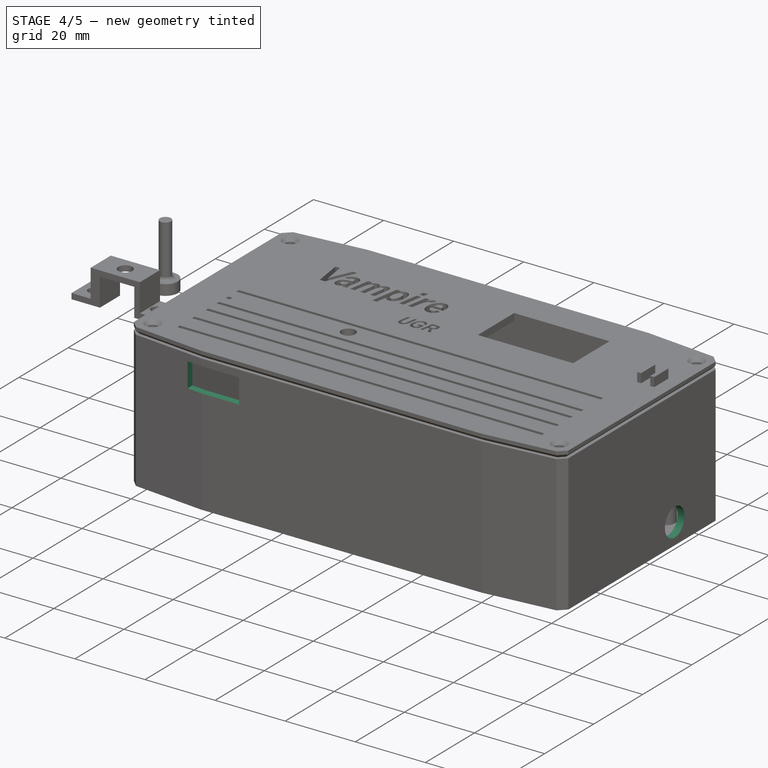
[diagram: stage 4 of 5 — iso view after this stage's code; geometry added in this stage tinted green]
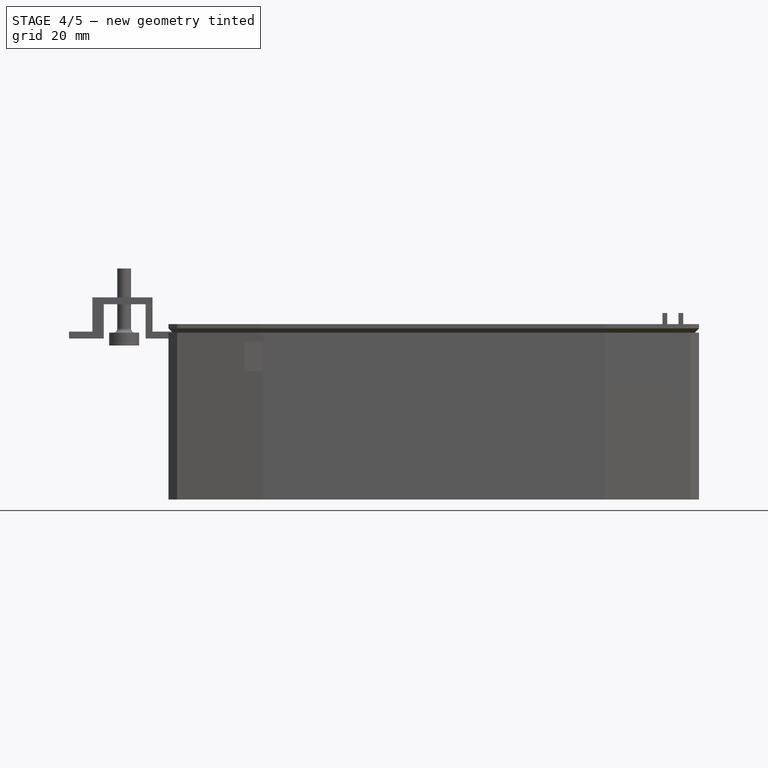
[diagram: stage 4 of 5 — front view after this stage's code; geometry added in this stage tinted green]
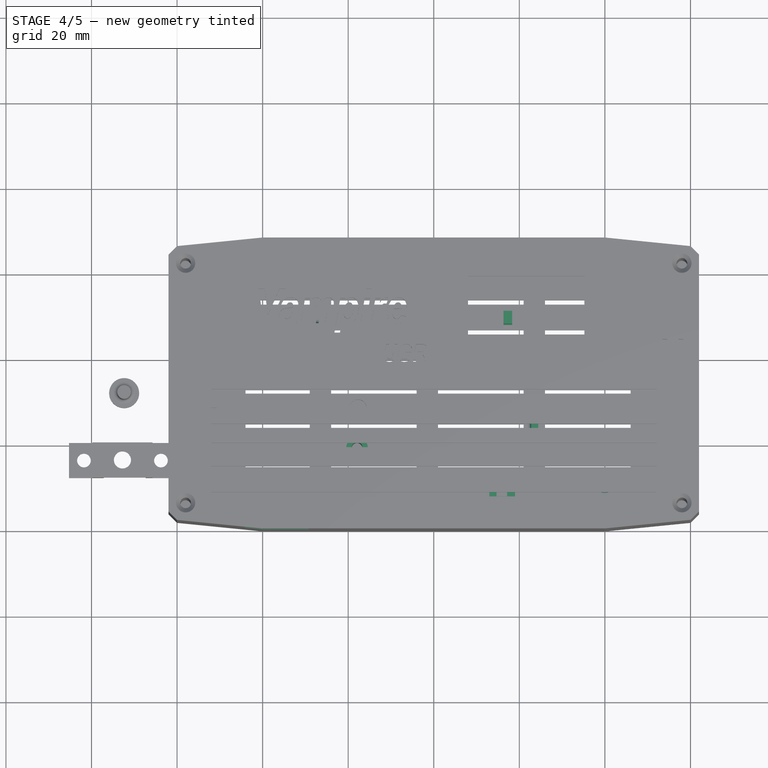
[diagram: stage 4 of 5 — top view after this stage's code; geometry added in this stage tinted green]
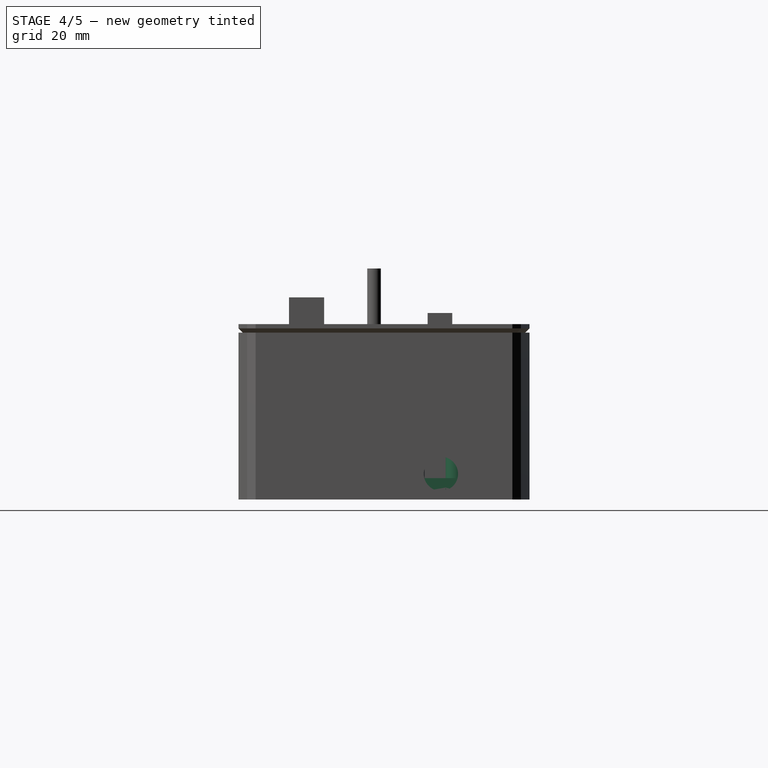
[diagram: stage 4 of 5 — right view after this stage's code; geometry added in this stage tinted green]
FEATURE [PartDesign::Plane] DatumPlane002  label="Lado derecho"
  Length = 80.1543
  MapMode = 5
  Placement = pos=(62,0,0) rot=(0.57735,0.57735,0.57735;2.0944rad)
  ResizeMode = 0
  Support = -> [Pad006]
  Width = 74.9135
FEATURE [Sketcher::SketchObject] Sketch012
  ExternalGeometry = -> [Thickness]
  FullyConstrained = false
  MapMode = 5
  Placement = pos=(62,0,0) rot=(0.57735,0.57735,0.57735;2.0944rad)
  Support = -> [DatumPlane002]
  sketch-geometry (1):
    g0: Circle CenterX=27.3077 CenterY=-33 CenterZ=0 NormalX=0 NormalY=0 NormalZ=1 AngleXU=0 Radius=4
  constraints (2):
    c: Diameter(g0) = 8
    c: DistanceY(g-3,g0) = 6
FEATURE [PartDesign::Pocket] Pocket  label="Agujero cable"
  BaseFeature = -> Pad008
  Length = 5
  Length2 = 100
  Profile = -> Sketch012
  Refine = true
  Type = 0
FEATURE [Sketcher::SketchObject] Sketch013
  ExternalGeometry = -> [Sketch009]
  FullyConstrained = true
  MapMode = 5
  Placement = pos=(0,0,-37) rot=(0,0,1;0rad)
  Support = -> [DatumPlane001]
  expr: Constraints[279] = .Constraints.sep1
  expr: Constraints[212] = 7
  expr: Constraints[30] = .Constraints.sep2
  expr: Constraints[211] = .Constraints.sep1
  expr: Constraints[282] = .Constraints.sep2
  sketch-geometry (96):
    g0: LineSegment StartX=-24 StartY=34 StartZ=0 EndX=-4 EndY=34 EndZ=0
    g1: LineSegment StartX=-4 StartY=34 StartZ=0 EndX=-4 EndY=33 EndZ=0
    g2: LineSegment StartX=-4 StartY=33 StartZ=0 EndX=-24 EndY=33 EndZ=0
    g3: LineSegment StartX=-24 StartY=33 StartZ=0 EndX=-24 EndY=34 EndZ=0
    g4: LineSegment StartX=1 StartY=34 StartZ=0 EndX=21 EndY=34 EndZ=0
    g5: LineSegment StartX=21 StartY=34 StartZ=0 EndX=21 EndY=33 EndZ=0
    g6: LineSegment StartX=21 StartY=33 StartZ=0 EndX=1 EndY=33 EndZ=0
    g7: LineSegment StartX=1 StartY=33 StartZ=0 EndX=1 EndY=34 EndZ=0
    g8: LineSegment StartX=26 StartY=34 StartZ=0 EndX=46 EndY=34 EndZ=0
    g9: LineSegment StartX=46 StartY=34 StartZ=0 EndX=46 EndY=33 EndZ=0
    g10: LineSegment StartX=46 StartY=33 StartZ=0 EndX=26 EndY=33 EndZ=0
    g11: LineSegment StartX=26 StartY=33 StartZ=0 EndX=26 EndY=34 EndZ=0
    g12: LineSegment StartX=26 StartY=27 StartZ=0 EndX=46 EndY=27 EndZ=0
    g13: LineSegment StartX=46 StartY=27 StartZ=0 EndX=46 EndY=26 EndZ=0
    g14: LineSegment StartX=46 StartY=26 StartZ=0 EndX=26 EndY=26 EndZ=0
    g15: LineSegment StartX=-24 StartY=27 StartZ=0 EndX=-4 EndY=27 EndZ=0
    g16: LineSegment StartX=-4 StartY=27 StartZ=0 EndX=-4 EndY=26 EndZ=0
    g17: LineSegment StartX=-4 StartY=26 StartZ=0 EndX=-24 EndY=26 EndZ=0
    g18: LineSegment StartX=-24 StartY=26 StartZ=0 EndX=-24 EndY=27 EndZ=0
    g19: LineSegment StartX=1 StartY=27 StartZ=0 EndX=21 EndY=27 EndZ=0
    g20: LineSegment StartX=21 StartY=27 StartZ=0 EndX=21 EndY=26 EndZ=0
    g21: LineSegment StartX=21 StartY=26 StartZ=0 EndX=1 EndY=26 EndZ=0
    g22: LineSegment StartX=1 StartY=26 StartZ=0 EndX=1 EndY=27 EndZ=0
    g23: LineSegment StartX=26 StartY=26 StartZ=0 EndX=26 EndY=27 EndZ=0
    g24: LineSegment StartX=-24 StartY=20 StartZ=0 EndX=-4 EndY=20 EndZ=0
    g25: LineSegment StartX=-4 StartY=20 StartZ=0 EndX=-4 EndY=19 EndZ=0
    g26: LineSegment StartX=-4 StartY=19 StartZ=0 EndX=-24 EndY=19 EndZ=0
    g27: LineSegment StartX=-24 StartY=19 StartZ=0 EndX=-24 EndY=20 EndZ=0
    g28: LineSegment StartX=1 StartY=20 StartZ=0 EndX=21 EndY=20 EndZ=0
    g29: LineSegment StartX=21 StartY=20 StartZ=0 EndX=21 EndY=19 EndZ=0
    g30: LineSegment StartX=21 StartY=19 StartZ=0 EndX=1 EndY=19 EndZ=0
    g31: LineSegment StartX=1 StartY=19 StartZ=0 EndX=1 EndY=20 EndZ=0
    g32: LineSegment StartX=26 StartY=20 StartZ=0 EndX=46 EndY=20 EndZ=0
    g33: LineSegment StartX=46 StartY=20 StartZ=0 EndX=46 EndY=19 EndZ=0
    g34: LineSegment StartX=46 StartY=19 StartZ=0 EndX=26 EndY=19 EndZ=0
    g35: LineSegment StartX=26 StartY=19 StartZ=0 EndX=26 EndY=20 EndZ=0
    g36: LineSegment StartX=26 StartY=13 StartZ=0 EndX=46 EndY=13 EndZ=0
    g37: LineSegment StartX=46 StartY=13 StartZ=0 EndX=46 EndY=12 EndZ=0
    g38: LineSegment StartX=46 StartY=12 StartZ=0 EndX=26 EndY=12 EndZ=0
    g39: LineSegment StartX=-24 StartY=13 StartZ=0 EndX=-4 EndY=13 EndZ=0
    g40: LineSegment StartX=-4 StartY=13 StartZ=0 EndX=-4 EndY=12 EndZ=0
    g41: LineSegment StartX=-4 StartY=12 StartZ=0 EndX=-24 EndY=12 EndZ=0
    g42: LineSegment StartX=-24 StartY=12 StartZ=0 EndX=-24 EndY=13 EndZ=0
    g43: LineSegment StartX=1 StartY=13 StartZ=0 EndX=21 EndY=13 EndZ=0
    g44: LineSegment StartX=21 StartY=13 StartZ=0 EndX=21 EndY=12 EndZ=0
    g45: LineSegment StartX=21 StartY=12 StartZ=0 EndX=1 EndY=12 EndZ=0
    g46: LineSegment StartX=1 StartY=12 StartZ=0 EndX=1 EndY=13 EndZ=0
    g47: LineSegment StartX=26 StartY=12 StartZ=0 EndX=26 EndY=13 EndZ=0
    g48: LineSegment StartX=-24 StartY=4 StartZ=0 EndX=-4 EndY=4 EndZ=0
    g49: LineSegment StartX=-4 StartY=4 StartZ=0 EndX=-4 EndY=5 EndZ=0
    g50: LineSegment StartX=-4 StartY=5 StartZ=0 EndX=-24 EndY=5 EndZ=0
    g51: LineSegment StartX=-24 StartY=5 StartZ=0 EndX=-24 EndY=4 EndZ=0
    g52: LineSegment StartX=1 StartY=4 StartZ=0 EndX=21 EndY=4 EndZ=0
    g53: LineSegment StartX=21 StartY=4 StartZ=0 EndX=21 EndY=5 EndZ=0
    g54: LineSegment StartX=21 StartY=5 StartZ=0 EndX=1 EndY=5 EndZ=0
    g55: LineSegment StartX=1 StartY=5 StartZ=0 EndX=1 EndY=4 EndZ=0
    g56: LineSegment StartX=26 StartY=4 StartZ=0 EndX=46 EndY=4 EndZ=0
    g57: LineSegment StartX=46 StartY=4 StartZ=0 EndX=46 EndY=5 EndZ=0
    g58: LineSegment StartX=46 StartY=5 StartZ=0 EndX=26 EndY=5 EndZ=0
    g59: LineSegment StartX=26 StartY=5 StartZ=0 EndX=26 EndY=4 EndZ=0
    g60: LineSegment StartX=26 StartY=-5 StartZ=0 EndX=46 EndY=-5 EndZ=0
    g61: LineSegment StartX=46 StartY=-5 StartZ=0 EndX=46 EndY=-4 EndZ=0
    g62: LineSegment StartX=46 StartY=-4 StartZ=0 EndX=26 EndY=-4 EndZ=0
    g63: LineSegment StartX=-24 StartY=-5 StartZ=0 EndX=-4 EndY=-5 EndZ=0
    g64: LineSegment StartX=-4 StartY=-5 StartZ=0 EndX=-4 EndY=-4 EndZ=0
    g65: LineSegment StartX=-4 StartY=-4 StartZ=0 EndX=-24 EndY=-4 EndZ=0
    g66: LineSegment StartX=-24 StartY=-4 StartZ=0 EndX=-24 EndY=-5 EndZ=0
    g67: LineSegment StartX=1 StartY=-5 StartZ=0 EndX=21 EndY=-5 EndZ=0
    g68: LineSegment StartX=21 StartY=-5 StartZ=0 EndX=21 EndY=-4 EndZ=0
    g69: LineSegment StartX=21 StartY=-4 StartZ=0 EndX=1 EndY=-4 EndZ=0
    g70: LineSegment StartX=1 StartY=-4 StartZ=0 EndX=1 EndY=-5 EndZ=0
    g71: LineSegment StartX=26 StartY=-4 StartZ=0 EndX=26 EndY=-5 EndZ=0
    g72: LineSegment StartX=-44 StartY=34 StartZ=0 EndX=-29 EndY=34 EndZ=0
    g73: LineSegment StartX=-29 StartY=34 StartZ=0 EndX=-29 EndY=33 EndZ=0
    g74: LineSegment StartX=-29 StartY=33 StartZ=0 EndX=-44 EndY=33 EndZ=0
    g75: LineSegment StartX=-44 StartY=33 StartZ=0 EndX=-44 EndY=34 EndZ=0
    g76: LineSegment StartX=-44 StartY=27 StartZ=0 EndX=-29 EndY=27 EndZ=0
    g77: LineSegment StartX=-29 StartY=27 StartZ=0 EndX=-29 EndY=26 EndZ=0
    g78: LineSegment StartX=-29 StartY=26 StartZ=0 EndX=-44 EndY=26 EndZ=0
    g79: LineSegment StartX=-44 StartY=26 StartZ=0 EndX=-44 EndY=27 EndZ=0
    g80: LineSegment StartX=-44 StartY=20 StartZ=0 EndX=-29 EndY=20 EndZ=0
    g81: LineSegment StartX=-29 StartY=20 StartZ=0 EndX=-29 EndY=19 EndZ=0
    g82: LineSegment StartX=-29 StartY=19 StartZ=0 EndX=-44 EndY=19 EndZ=0
    g83: LineSegment StartX=-44 StartY=19 StartZ=0 EndX=-44 EndY=20 EndZ=0
    g84: LineSegment StartX=-44 StartY=13 StartZ=0 EndX=-29 EndY=13 EndZ=0
    g85: LineSegment StartX=-29 StartY=13 StartZ=0 EndX=-29 EndY=12 EndZ=0
    g86: LineSegment StartX=-29 StartY=12 StartZ=0 EndX=-44 EndY=12 EndZ=0
    g87: LineSegment StartX=-44 StartY=12 StartZ=0 EndX=-44 EndY=13 EndZ=0
    g88: LineSegment StartX=-44 StartY=4 StartZ=0 EndX=-29 EndY=4 EndZ=0
    g89: LineSegment StartX=-29 StartY=4 StartZ=0 EndX=-29 EndY=5 EndZ=0
    g90: LineSegment StartX=-29 StartY=5 StartZ=0 EndX=-44 EndY=5 EndZ=0
    g91: LineSegment StartX=-44 StartY=5 StartZ=0 EndX=-44 EndY=4 EndZ=0
    g92: LineSegment StartX=-44 StartY=-5 StartZ=0 EndX=-29 EndY=-5 EndZ=0
    g93: LineSegment StartX=-29 StartY=-5 StartZ=0 EndX=-29 EndY=-4 EndZ=0
    g94: LineSegment StartX=-29 StartY=-4 StartZ=0 EndX=-44 EndY=-4 EndZ=0
    g95: LineSegment StartX=-44 StartY=-4 StartZ=0 EndX=-44 EndY=-5 EndZ=0
  constraints (289):
    c: Coincident(g0,g1)
    c: Coincident(g1,g2)
    c: Coincident(g2,g3)
    c: Coincident(g3,g0)
    c: Horizontal(g0)
    c: Horizontal(g2)
    c: Vertical(g1)
    c: Vertical(g3)
    c: DistanceY(g3,g3) = 1
    c: DistanceX(g0,g0) = 20
    c: Coincident(g4,g5)
    c: Coincident(g5,g6)
    c: Coincident(g6,g7)
    c: Coincident(g7,g4)
    c: Horizontal(g4)
    c: Horizontal(g6)
    c: Vertical(g5)
    c: Vertical(g7)
    c: Equal(g3,g7) = 1
    c: Equal(g0,g4) = 20
    c: Coincident(g8,g9)
    c: Coincident(g9,g10)
    c: Coincident(g10,g11)
    c: Coincident(g11,g8)
    c: Horizontal(g8)
    c: Horizontal(g10)
    c: Vertical(g9)
    c: Vertical(g11)
    c: Equal(g3,g11) = 1
    c: Equal(g0,g8) = 20
    c: DistanceX(g1,g6) = 5
    c: DistanceX(g4,g8) = 5  'sep2'
    c: Horizontal(g1,g6)
    c: Horizontal(g5,g10)
    c: Coincident(g15,g16)
    c: Coincident(g16,g17)
    c: Coincident(g17,g18)
    c: Coincident(g18,g15)
    c: Horizontal(g15)
    c: Horizontal(g17)
    c: Vertical(g16)
    c: Vertical(g18)
    c: Equal(g3,g18) = 1
    c: Equal(g0,g15) = 20
    c: Coincident(g19,g20)
    c: Coincident(g20,g21)
    c: Coincident(g21,g22)
    c: Coincident(g22,g19)
    c: Horizontal(g19)
    c: Horizontal(g21)
    c: Vertical(g20)
    c: Vertical(g22)
    c: Equal(g18,g22) = 1
    c: Equal(g15,g19) = 20
    c: Coincident(g12,g13)
    c: Coincident(g13,g14)
    c: Coincident(g14,g23)
    c: Coincident(g23,g12)
    c: Horizontal(g12)
    c: Horizontal(g14)
    c: Vertical(g13)
    c: Vertical(g23)
    c: Equal(g18,g23) = 1
    c: Equal(g15,g12) = 20
    c: DistanceX(g16,g21) = 5
    c: DistanceX(g19,g12) = 5
    c: Horizontal(g16,g21)
    c: Horizontal(g20,g14)
    c: Coincident(g24,g25)
    c: Coincident(g25,g26)
    c: Coincident(g26,g27)
    c: Coincident(g27,g24)
    c: Horizontal(g24)
    c: Horizontal(g26)
    c: Vertical(g25)
    c: Vertical(g27)
    c: Equal(g3,g27) = 1
    c: Equal(g0,g24) = 20
    c: Coincident(g28,g29)
    c: Coincident(g29,g30)
    c: Coincident(g30,g31)
    c: Coincident(g31,g28)
    c: Horizontal(g28)
    c: Horizontal(g30)
    c: Vertical(g29)
    c: Vertical(g31)
    c: Equal(g27,g31) = 1
    c: Equal(g24,g28) = 20
    c: Coincident(g32,g33)
    c: Coincident(g33,g34)
    c: Coincident(g34,g35)
    c: Coincident(g35,g32)
    c: Horizontal(g32)
    c: Horizontal(g34)
    c: Vertical(g33)
    c: Vertical(g35)
    c: Equal(g27,g35) = 1
    c: Equal(g24,g32) = 20
    c: DistanceX(g25,g30) = 5
    c: DistanceX(g28,g32) = 5
    c: Horizontal(g25,g30)
    c: Horizontal(g29,g34)
    c: Coincident(g39,g40)
    c: Coincident(g40,g41)
    c: Coincident(g41,g42)
    c: Coincident(g42,g39)
    c: Horizontal(g39)
    c: Horizontal(g41)
    c: Vertical(g40)
    c: Vertical(g42)
    c: Equal(g27,g42) = 1
    c: Equal(g24,g39) = 20
    c: Coincident(g43,g44)
    c: Coincident(g44,g45)
    c: Coincident(g45,g46)
    c: Coincident(g46,g43)
    c: Horizontal(g43)
    c: Horizontal(g45)
    c: Vertical(g44)
    c: Vertical(g46)
    c: Equal(g42,g46) = 1
    c: Equal(g39,g43) = 20
    c: Coincident(g36,g37)
    c: Coincident(g37,g38)
    c: Coincident(g38,g47)
    c: Coincident(g47,g36)
    c: Horizontal(g36)
    c: Horizontal(g38)
    c: Vertical(g37)
    c: Vertical(g47)
    c: Equal(g42,g47) = 1
    c: Equal(g39,g36) = 20
    c: DistanceX(g40,g45) = 5
    c: DistanceX(g43,g36) = 5
    c: Horizontal(g40,g45)
    c: Horizontal(g44,g38)
    c: Coincident(g48,g49)
    c: Coincident(g49,g50)
    c: Coincident(g50,g51)
    c: Coincident(g51,g48)
    c: Horizontal(g48)
    c: Horizontal(g50)
    c: Vertical(g49)
    c: Vertical(g51)
    c: Coincident(g52,g53)
    c: Coincident(g53,g54)
    c: Coincident(g54,g55)
    c: Coincident(g55,g52)
    c: Horizontal(g52)
    c: Horizontal(g54)
    c: Vertical(g53)
    c: Vertical(g55)
    c: Equal(g51,g55) = 1
    c: Equal(g48,g52) = 20
    c: Coincident(g56,g57)
    c: Coincident(g57,g58)
    c: Coincident(g58,g59)
    c: Coincident(g59,g56)
    c: Horizontal(g56)
    c: Horizontal(g58)
    c: Vertical(g57)
    c: Vertical(g59)
    c: Equal(g51,g59) = 1
    c: Equal(g48,g56) = 20
    c: DistanceX(g49,g54) = 5
    c: DistanceX(g52,g56) = 5
    c: Horizontal(g49,g54)
    c: Horizontal(g53,g58)
    c: Coincident(g63,g64)
    c: Coincident(g64,g65)
    c: Coincident(g65,g66)
    c: Coincident(g66,g63)
    c: Horizontal(g63)
    c: Horizontal(g65)
    c: Vertical(g64)
    c: Vertical(g66)
    c: Equal(g51,g66) = 1
    c: Equal(g48,g63) = 20
    c: Coincident(g67,g68)
    c: Coincident(g68,g69)
    c: Coincident(g69,g70)
    c: Coincident(g70,g67)
    c: Horizontal(g67)
    c: Horizontal(g69)
    c: Vertical(g68)
    c: Vertical(g70)
    c: Equal(g66,g70) = 1
    c: Equal(g63,g67) = 20
    c: Coincident(g60,g61)
    c: Coincident(g61,g62)
    c: Coincident(g62,g71)
    c: Coincident(g71,g60)
    c: Horizontal(g60)
    c: Horizontal(g62)
    c: Vertical(g61)
    c: Vertical(g71)
    c: Equal(g66,g71) = 1
    c: Equal(g63,g60) = 20
    c: DistanceX(g64,g69) = 5
    c: DistanceX(g67,g60) = 5
    c: Horizontal(g64,g69)
    c: Horizontal(g68,g62)
    c: Vertical(g1,g15)
    c: Vertical(g17,g24)
    c: Vertical(g26,g39)
    c: Vertical(g41,g50)
    c: Vertical(g48,g65)
    c: Vertical(g40,g49)
    c: DistanceY(g8,g-3) = 8
    c: DistanceX(g8,g-3) = 12
    c: DistanceY(g12,g9) = 6  'sep1'
    c: DistanceY(g36,g33) = 6
    c: DistanceY(g57,g37) = 7
    c: DistanceY(g61,g56) = 8
    c: Equal(g37,g57)
    c: Coincident(g72,g73)
    c: Coincident(g73,g74)
    c: Coincident(g74,g75)
    c: Coincident(g75,g72)
    c: Horizontal(g72)
    c: Horizontal(g74)
    c: Vertical(g73)
    c: Vertical(g75)
    c: Equal(g3,g75) = 1
    c: Equal(g0,g72) = 20
    c: Coincident(g76,g77)
    c: Coincident(g77,g78)
    c: Coincident(g78,g79)
    c: Coincident(g79,g76)
    c: Horizontal(g76)
    c: Horizontal(g78)
    c: Vertical(g77)
    c: Vertical(g79)
    c: Equal(g75,g79) = 1
    c: Equal(g72,g76) = 20
    c: Coincident(g80,g81)
    c: Coincident(g81,g82)
    c: Coincident(g82,g83)
    c: Coincident(g83,g80)
    c: Horizontal(g80)
    c: Horizontal(g82)
    c: Vertical(g81)
    c: Vertical(g83)
    c: Equal(g75,g83) = 1
    c: Equal(g72,g80) = 20
    c: Coincident(g84,g85)
    c: Coincident(g85,g86)
    c: Coincident(g86,g87)
    c: Coincident(g87,g84)
    c: Horizontal(g84)
    c: Horizontal(g86)
    c: Vertical(g85)
    c: Vertical(g87)
    c: Equal(g83,g87) = 1
    c: Equal(g80,g84) = 20
    c: Coincident(g88,g89)
    c: Coincident(g89,g90)
    c: Coincident(g90,g91)
    c: Coincident(g91,g88)
    c: Horizontal(g88)
    c: Horizontal(g90)
    c: Vertical(g89)
    c: Vertical(g91)
    c: Coincident(g92,g93)
    c: Coincident(g93,g94)
    c: Coincident(g94,g95)
    c: Coincident(g95,g92)
    c: Horizontal(g92)
    c: Horizontal(g94)
    c: Vertical(g93)
    c: Vertical(g95)
    c: Equal(g91,g95) = 1
    c: Equal(g88,g92) = 20
    c: Vertical(g73,g76)
    c: Vertical(g78,g80)
    c: Vertical(g82,g84)
    c: Vertical(g86,g90)
    c: Vertical(g88,g94)
    c: Vertical(g85,g89)
    c: DistanceY(g32,g13) = 6
    c: Horizontal(g0,g72)
    c: Horizontal(g15,g76)
    c: DistanceX(g72,g0) = 5
    c: Horizontal(g24,g80)
    c: Horizontal(g50,g89)
    c: Horizontal(g39,g84)
    c: Horizontal(g65,g93)
    c: Horizontal(g48,g88)
    c: DistanceX(g72,g72) = 15
FEATURE [PartDesign::Pocket] Pocket001  label="Ventil cara inferior"
  BaseFeature = -> Pocket
  Length = 5
  Length2 = 100
  Midplane = true
  Profile = -> Sketch013
  Refine = true
  Reversed = true
  Type = 0
FEATURE [PartDesign::Body] Pad009Body
  Group = -> [Sketch011,Pad009]
  Origin = -> Origin005
  Tip = -> Pad009
FEATURE [App::Part] Part
  Group = -> [Pad009Body]
  Origin = -> Origin004
FEATURE [PartDesign::Plane] DatumPlane003
  Length = 109.809
  MapMode = 5
  Placement = pos=(0,-20,0) rot=(1,0,0;1.5708rad)
  ResizeMode = 0
  Support = -> [Pad006]
  Width = 77.3088
FEATURE [Sketcher::SketchObject] Sketch014
  ExternalGeometry = -> [Pad006]
  FullyConstrained = true
  MapMode = 5
  Placement = pos=(0,-20,0) rot=(1,0,0;1.5708rad)
  Support = -> [DatumPlane003]
  sketch-geometry (4):
    g0: LineSegment StartX=-44.2 StartY=-2 StartZ=0 EndX=-29.2 EndY=-2 EndZ=0
    g1: LineSegment StartX=-29.2 StartY=-2 StartZ=0 EndX=-29.2 EndY=-9 EndZ=0
    g2: LineSegment StartX=-29.2 StartY=-9 StartZ=0 EndX=-44.2 EndY=-9 EndZ=0
    g3: LineSegment StartX=-44.2 StartY=-9 StartZ=0 EndX=-44.2 EndY=-2 EndZ=0
  constraints (12):
    c: Coincident(g0,g1)
    c: Coincident(g1,g2)
    c: Coincident(g2,g3)
    c: Coincident(g3,g0)
    c: Horizontal(g0)
    c: Horizontal(g2)
    c: Vertical(g1)
    c: Vertical(g3)
    c: DistanceX(g-3,g0) = 17.8
    c: DistanceX(g0,g0) = 15
    c: DistanceY(g1,g1) = 7
    c: DistanceY(g0,g-3) = 2
FEATURE [PartDesign::Pocket] Pocket002  label="Agujero USB"
  BaseFeature = -> Pocket001
  Length = 5
  Length2 = 100
  Profile = -> Sketch014
  Refine = true
  Type = 0
FEATURE [Sketcher::SketchObject] Sketch015
  ExternalGeometry = -> [Sketch013,Pocket002,Sketch010]
  FullyConstrained = false
  MapMode = 5
  Placement = pos=(0,0,-37) rot=(0,0,1;0rad)
  Support = -> [DatumPlane001]
  sketch-geometry (39):
    g0: Circle CenterX=40 CenterY=-8.5 CenterZ=0 NormalX=0 NormalY=0 NormalZ=1 AngleXU=0 Radius=1
    g1: Circle CenterX=40 CenterY=-8.5 CenterZ=0 NormalX=0 NormalY=0 NormalZ=1 AngleXU=0 Radius=2.5
    g2: LineSegment StartX=-3.17805 StartY=41 StartZ=0 EndX=5.69474 EndY=41 EndZ=0
    g3: LineSegment StartX=5.69474 StartY=41 StartZ=0 EndX=5.69474 EndY=37.8355 EndZ=0
    g4: LineSegment StartX=5.69474 StartY=37.8355 StartZ=0 EndX=-3.17805 EndY=37.8355 EndZ=0
    g5: LineSegment StartX=-3.17805 StartY=37.8355 StartZ=0 EndX=-3.17805 EndY=41 EndZ=0
    g6: LineSegment StartX=-27.5363 StartY=23.6055 StartZ=0 EndX=-26.0296 EndY=23.6055 EndZ=0
    g7: LineSegment StartX=-26.0296 StartY=23.6055 StartZ=0 EndX=-26.0296 EndY=28.6278 EndZ=0
    g8: LineSegment StartX=-26.0296 StartY=28.6278 StartZ=0 EndX=-27.5363 EndY=28.6278 EndZ=0
    g9: LineSegment StartX=-27.5363 StartY=28.6278 StartZ=0 EndX=-27.5363 EndY=23.6055 EndZ=0
    g10: LineSegment StartX=-4.26622 StartY=17.3276 StartZ=0 EndX=5.47185 EndY=17.3276 EndZ=0
    g11: LineSegment StartX=5.47185 StartY=17.3276 StartZ=0 EndX=5.47185 EndY=16.0616 EndZ=0
    g12: LineSegment StartX=5.47185 StartY=16.0616 StartZ=0 EndX=-4.26622 EndY=16.0616 EndZ=0
    g13: LineSegment StartX=-4.26622 StartY=16.0616 StartZ=0 EndX=-4.26622 EndY=17.3276 EndZ=0
    g14: LineSegment StartX=16.3013 StartY=31.5 StartZ=0 EndX=18.3013 EndY=31.5 EndZ=0
    g15: LineSegment StartX=18.3013 StartY=31.5 StartZ=0 EndX=18.3013 EndY=28.5 EndZ=0
    g16: LineSegment StartX=18.3013 StartY=28.5 StartZ=0 EndX=16.3013 EndY=28.5 EndZ=0
    g17: LineSegment StartX=16.3013 StartY=28.5 StartZ=0 EndX=16.3013 EndY=31.5 EndZ=0
    g18: LineSegment StartX=18.3013 StartY=21.5 StartZ=0 EndX=18.3013 EndY=20 EndZ=0
    g19: LineSegment StartX=18.3013 StartY=24.5 StartZ=0 EndX=18.3013 EndY=26 EndZ=0
    g20: LineSegment StartX=18.3013 StartY=24.5 StartZ=0 EndX=16.3013 EndY=24.5 EndZ=0
    g21: LineSegment StartX=16.3013 StartY=24.5 StartZ=0 EndX=16.3013 EndY=21.5 EndZ=0
    g22: LineSegment StartX=16.3013 StartY=21.5 StartZ=0 EndX=18.3013 EndY=21.5 EndZ=0
    g23: LineSegment StartX=18.3013 StartY=21.5 StartZ=0 EndX=18.3013 EndY=24.5 EndZ=0
    g24: LineSegment StartX=18.3013 StartY=28.5 StartZ=0 EndX=18.3013 EndY=27 EndZ=0
    g25: LineSegment StartX=13 StartY=-13.3646 StartZ=0 EndX=19 EndY=-13.3646 EndZ=0
    g26: LineSegment StartX=19 StartY=-13.3646 StartZ=0 EndX=19 EndY=-7.36464 EndZ=0
    g27: LineSegment StartX=19 StartY=-7.36464 StartZ=0 EndX=13 EndY=-7.36464 EndZ=0
    g28: LineSegment StartX=13 StartY=-7.36464 StartZ=0 EndX=13 EndY=-13.3646 EndZ=0
    g29: LineSegment StartX=22.7563 StartY=2.56654 StartZ=0 EndX=24.4275 EndY=2.56654 EndZ=0
    g30: LineSegment StartX=24.4275 StartY=2.56654 StartZ=0 EndX=24.4275 EndY=7.58 EndZ=0
    g31: LineSegment StartX=24.4275 StartY=7.58 StartZ=0 EndX=22.7563 EndY=7.58 EndZ=0
    g32: LineSegment StartX=22.7563 StartY=7.58 StartZ=0 EndX=22.7563 EndY=2.56654 EndZ=0
    g33: Circle CenterX=-34.5 CenterY=16 CenterZ=0 NormalX=0 NormalY=0 NormalZ=1 AngleXU=0 Radius=1.25
    g34: Circle CenterX=-34.5 CenterY=16 CenterZ=0 NormalX=0 NormalY=0 NormalZ=1 AngleXU=0 Radius=2.5
    g35: LineSegment StartX=14.6751 StartY=-9.1184 StartZ=0 EndX=17.1515 EndY=-9.1184 EndZ=0
    g36: LineSegment StartX=17.1515 StartY=-9.1184 StartZ=0 EndX=17.1515 EndY=-11.87 EndZ=0
    g37: LineSegment StartX=17.1515 StartY=-11.87 StartZ=0 EndX=14.6751 EndY=-11.87 EndZ=0
    g38: LineSegment StartX=14.6751 StartY=-11.87 StartZ=0 EndX=14.6751 EndY=-9.1184 EndZ=0
  constraints (92):
    c: Diameter(g0) = 2
    c: Diameter(g1) = 5
    c: Coincident(g2,g3)
    c: Coincident(g3,g4)
    c: Coincident(g4,g5)
    c: Coincident(g5,g2)
    c: Horizontal(g2)
    c: Horizontal(g4)
    c: Vertical(g3)
    c: Vertical(g5)
    c: Coincident(g6,g7)
    c: Coincident(g7,g8)
    c: Coincident(g8,g9)
    c: Coincident(g9,g6)
    c: Horizontal(g6)
    c: Horizontal(g8)
    c: Vertical(g7)
    c: Vertical(g9)
    c: Coincident(g10,g11)
    c: Coincident(g11,g12)
    c: Coincident(g12,g13)
    c: Coincident(g13,g10)
    c: Horizontal(g10)
    c: Horizontal(g12)
    c: Vertical(g11)
    c: Vertical(g13)
    c: Coincident(g14,g15)
    c: Coincident(g15,g16)
    c: Coincident(g16,g17)
    c: Coincident(g17,g14)
    c: Horizontal(g14)
    c: Horizontal(g16)
    c: Vertical(g15)
    c: Vertical(g17)
    c: PointOnObject(g18,g-4)
    c: Vertical(g18)
    c: PointOnObject(g19,g-5)
    c: Vertical(g19)
    c: Equal(g18,g19)
    c: Coincident(g20,g21)
    c: Coincident(g21,g22)
    c: Coincident(g22,g23)
    c: Coincident(g23,g20)
    c: Horizontal(g20)
    c: Horizontal(g22)
    c: Vertical(g21)
    c: Vertical(g23)
    c: Coincident(g20,g19)
    c: Coincident(g18,g22)
    c: DistanceY(g23,g23) = 3
    c: DistanceX(g20,g20) = 2
    c: Vertical(g20,g15)
    c: Vertical(g20,g16)
    c: Equal(g23,g15)
    c: Coincident(g24,g15)
    c: PointOnObject(g24,g-3)
    c: Vertical(g24)
    c: Equal(g18,g24)
    c: Coincident(g25,g26)
    c: Coincident(g26,g27)
    c: Coincident(g27,g28)
    c: Coincident(g28,g25)
    c: Horizontal(g25)
    c: Horizontal(g27)
    c: Vertical(g26)
    c: Vertical(g28)
    c: Horizontal(g0,g25)
    c: DistanceX(g25,g25) = 6
    c: DistanceY(g26,g26) = 6
    c: Coincident(g29,g30)
    c: Coincident(g30,g31)
    c: Coincident(g31,g32)
    c: Coincident(g32,g29)
    c: Horizontal(g29)
    c: Horizontal(g31)
    c: Vertical(g30)
    c: Vertical(g32)
    c: Coincident(g1,g0)
    c: Coincident(g34,g33)
    c: Vertical(g-10,g0)
    c: DistanceY(g-10,g0) = 5.5
    c: Vertical(g-7,g33)
    c: Horizontal(g-11,g33)
    c: Coincident(g35,g36)
    c: Coincident(g36,g37)
    c: Coincident(g37,g38)
    c: Coincident(g38,g35)
    c: Horizontal(g35)
    c: Horizontal(g37)
    c: Vertical(g36)
    c: Vertical(g38)
    c: DistanceX(g25,g0) = 21
FEATURE [PartDesign::Pad] Pad010  label="tornillos base y topes"
  BaseFeature = -> Pocket002
  Direction = (0,0,1)
  Length = 3
  Length2 = 100
  Profile = -> Sketch015
  ReferenceAxis = -> Sketch015 [N_Axis]
  Refine = true
  Type = 0
FEATURE [Sketcher::SketchObject] Sketch016
  FullyConstrained = false
  MapMode = 5
  Placement = pos=(0,0,-37) rot=(0,0,1;0rad)
  Support = -> [DatumPlane001]
  sketch-geometry (8):
    g0: Circle CenterX=-17.9289 CenterY=-0.630394 CenterZ=0 NormalX=0 NormalY=0 NormalZ=1 AngleXU=0 Radius=1.25
    g1: Circle CenterX=-17.9289 CenterY=-0.630394 CenterZ=0 NormalX=0 NormalY=0 NormalZ=1 AngleXU=0 Radius=2.5
    g2: Circle CenterX=-58.0828 CenterY=30.8976 CenterZ=0 NormalX=0 NormalY=0 NormalZ=1 AngleXU=0 Radius=2.5
    g3: Circle CenterX=-58.0828 CenterY=30.8976 CenterZ=0 NormalX=0 NormalY=0 NormalZ=1 AngleXU=0 Radius=1
    g4: Circle CenterX=-41.9828 CenterY=43.3976 CenterZ=0 NormalX=0 NormalY=0 NormalZ=1 AngleXU=0 Radius=2.5
    g5: Circle CenterX=-41.9828 CenterY=43.3976 CenterZ=0 NormalX=0 NormalY=0 NormalZ=1 AngleXU=0 Radius=1.25
    g6: Circle CenterX=-58.0518 CenterY=-5.81908 CenterZ=0 NormalX=0 NormalY=0 NormalZ=1 AngleXU=0 Radius=1
    g7: Circle CenterX=-58.0518 CenterY=-5.81908 CenterZ=0 NormalX=0 NormalY=0 NormalZ=1 AngleXU=0 Radius=2.5
  constraints (12):
    c: Coincident(g1,g0)
    c: Diameter(g0) = 2.5
    c: Diameter(g1) = 5
    c: Coincident(g5,g4)
    c: Equal(g1,g4)
    c: Equal(g0,g5)
    c: DistanceX(g2,g4) = 16.1
    c: DistanceY(g2,g4) = 12.5
    c: Coincident(g2,g3)
    c: Coincident(g7,g6)
    c: Diameter(g6) = 2
    c: Diameter(g3) = 2
FEATURE [PartDesign::Pad] Pad011
  BaseFeature = -> Pad010
  Direction = (0,0,1)
  Length = 13
  Length2 = 100
  Profile = -> Sketch016
  ReferenceAxis = -> Sketch016 [N_Axis]
  Refine = true
  Type = 0
FEATURE [PartDesign::Body] Body004  label="base_esp32"
  Group = -> [Sketch018,Pad013,Sketch019,Pad014]
  Origin = -> Origin006
  Tip = -> Pad014
FEATURE [PartDesign::Fillet] Fillet
  Base = -> Pad011 [Edge420,Edge433,Edge435,Edge434,Edge448,Edge458,Edge428,Edge413]
  BaseFeature = -> Pad011
  Radius = 1
  Refine = true
  SupportTransform = false
FEATURE [PartDesign::Fillet] Fillet001
  Base = -> Fillet [Edge69,Edge57,Edge167]
  BaseFeature = -> Fillet
  Radius = 1
  Refine = true
  SupportTransform = false
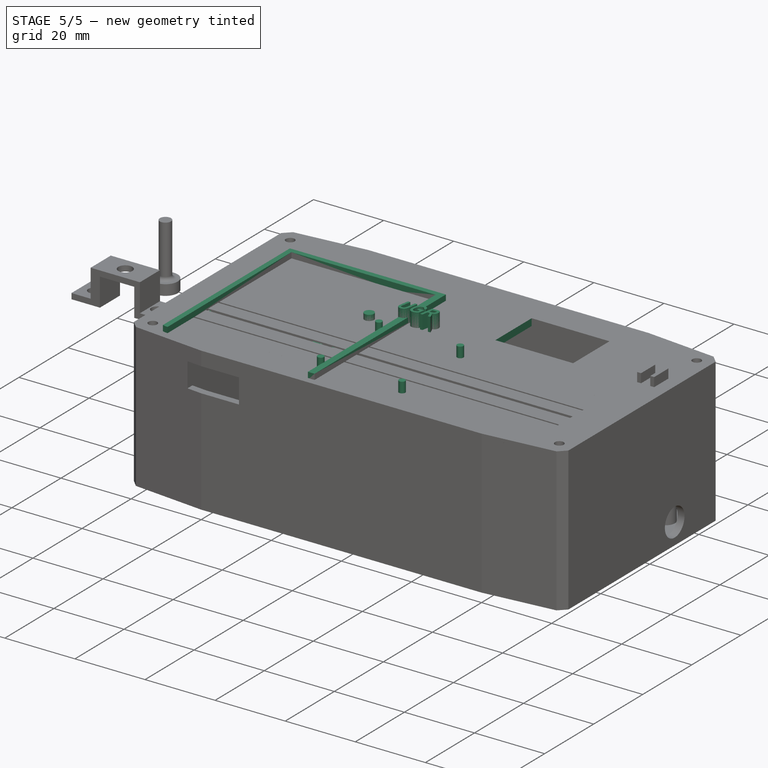
[diagram: stage 5 of 5 — iso view after this stage's code; geometry added in this stage tinted green]
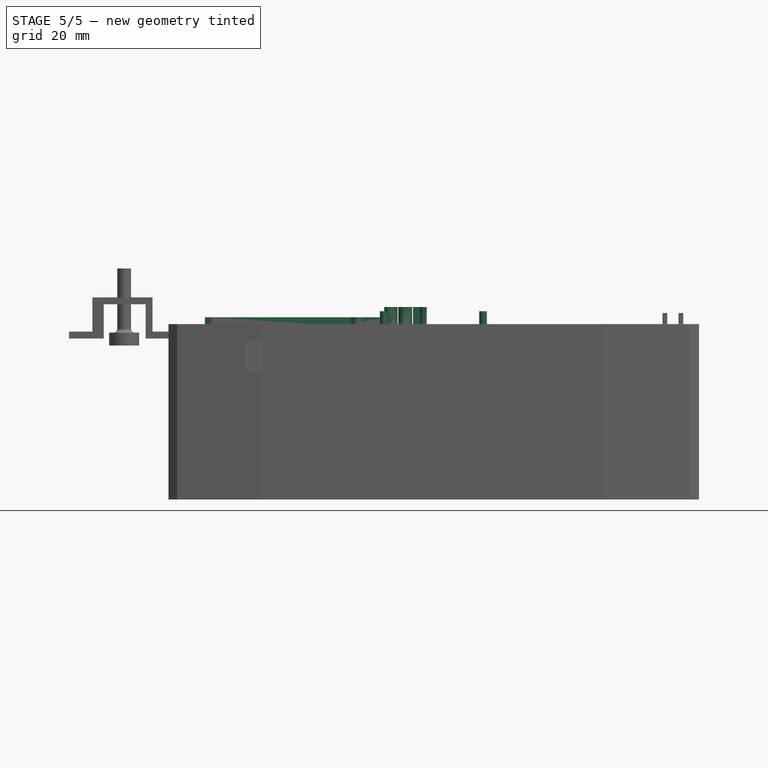
[diagram: stage 5 of 5 — front view after this stage's code; geometry added in this stage tinted green]
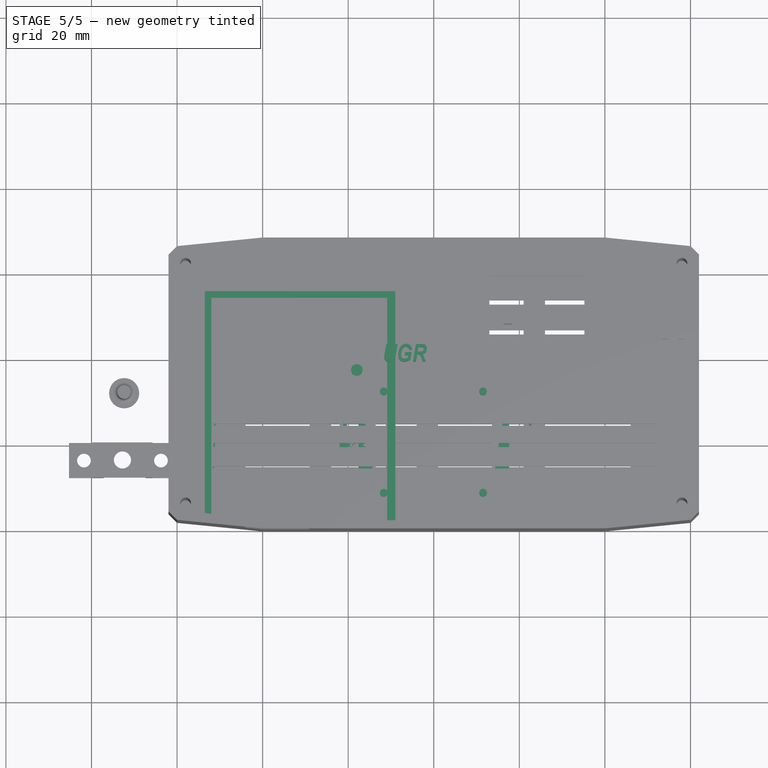
[diagram: stage 5 of 5 — top view after this stage's code; geometry added in this stage tinted green]
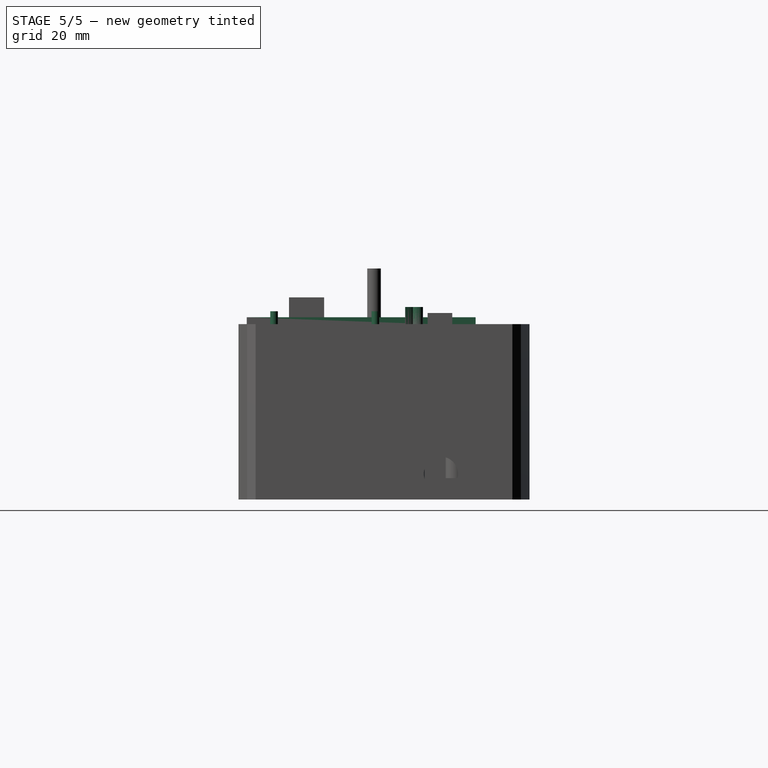
[diagram: stage 5 of 5 — right view after this stage's code; geometry added in this stage tinted green]
FEATURE [Spreadsheet::Sheet] Spreadsheet
  cells = A3=tft Height; B3(tftHeight)==14.8mm; A4=tft Width; B4(tftWidth)==27.2mm; A5=screw X sep; B5(sXsep)==23.2mm; A6=screw Y sep ; B6(sYsep)==23.7mm; A7=Internal screw X ; B7(isX)==0.9mm; A8=External screw Y; B8(esY)==1.6mm; A9=External rad; B9(erad)==0.9mm; A11=screw diam; B11==2mm; A12=screw rad; B12(screwR)==B11 / 2 + 0.25mm
FEATURE [Sketcher::SketchObject] Sketch004
  FullyConstrained = true
  MapMode = 5
  Support = -> [XY_Plane002]
  expr: Constraints[14] = Spreadsheet.tftWidth
  expr: Constraints[15] = Spreadsheet.tftHeight + 6mm
  sketch-geometry (16):
    g0: LineSegment StartX=-17.6 StartY=-17.4 StartZ=0 EndX=17.6 EndY=-17.4 EndZ=0
    g1: LineSegment StartX=17.6 StartY=-17.4 StartZ=0 EndX=17.6 EndY=14.4 EndZ=0
    g2: LineSegment StartX=17.6 StartY=14.4 StartZ=0 EndX=8.1 EndY=14.4 EndZ=0
    g3: LineSegment StartX=-17.6 StartY=14.4 StartZ=0 EndX=-17.6 EndY=-17.4 EndZ=0
    g4: LineSegment StartX=-13.6 StartY=-10.4 StartZ=0 EndX=-7.5 EndY=-10.4 EndZ=0
    g5: LineSegment StartX=13.6 StartY=-10.4 StartZ=0 EndX=13.6 EndY=10.4 EndZ=0
    g6: LineSegment StartX=13.6 StartY=10.4 StartZ=0 EndX=8.1 EndY=10.4 EndZ=0
    g7: LineSegment StartX=-13.6 StartY=10.4 StartZ=0 EndX=-13.6 EndY=-10.4 EndZ=0
    g8: LineSegment StartX=-8.1 StartY=14.4 StartZ=0 EndX=-8.1 EndY=10.4 EndZ=0
    g9: LineSegment StartX=8.1 StartY=14.4 StartZ=0 EndX=8.1 EndY=10.4 EndZ=0
    g10: LineSegment StartX=-8.1 StartY=14.4 StartZ=0 EndX=-17.6 EndY=14.4 EndZ=0
    g11: LineSegment StartX=-8.1 StartY=10.4 StartZ=0 EndX=-13.6 EndY=10.4 EndZ=0
    g12: LineSegment StartX=-7.5 StartY=-10.4 StartZ=0 EndX=-7.5 EndY=-13.4 EndZ=0
    g13: LineSegment StartX=-7.5 StartY=-13.4 StartZ=0 EndX=7.5 EndY=-13.4 EndZ=0
    g14: LineSegment StartX=7.5 StartY=-10.4 StartZ=0 EndX=7.5 EndY=-13.4 EndZ=0
    g15: LineSegment StartX=7.5 StartY=-10.4 StartZ=0 EndX=13.6 EndY=-10.4 EndZ=0
  constraints (46):
    c: Coincident(g0,g1)
    c: Coincident(g1,g2)
    c: Coincident(g10,g3)
    c: Coincident(g3,g0)
    c: Horizontal(g0)
    c: Horizontal(g2)
    c: Vertical(g1)
    c: Vertical(g3)
    c: Coincident(g15,g5)
    c: Coincident(g5,g6)
    c: Coincident(g11,g7)
    c: Coincident(g7,g4)
    c: Horizontal(g6)
    c: Vertical(g7)
    c: DistanceX(g11,g6) = 27.2
    c: DistanceY(g7,g7) = 20.8
    c: Symmetric(g15,g4,g-2)
    c: Symmetric(g15,g5,g-1)
    c: DistanceY(g5,g1) = 4
    c: DistanceX(g0,g4) = 4
    c: Vertical(g8)
    c: Vertical(g9)
    c: Coincident(g2,g9)
    c: Coincident(g10,g8)
    c: Coincident(g6,g9)
    c: Coincident(g11,g8)
    c: Equal(g10,g2)
    c: Equal(g11,g6)
    c: Horizontal(g3,g8)
    c: Horizontal(g8,g6)
    c: Horizontal(g8,g2)
    c: DistanceX(g10,g10) = 9.5
    c: DistanceY(g0,g15) = 7
    c: Coincident(g13,g12)
    c: Horizontal(g13)
    c: Coincident(g14,g13)
    c: Coincident(g4,g12)
    c: Coincident(g15,g14)
    c: Vertical(g12,g4)
    c: Vertical(g13,g14)
    c: DistanceX(g4,g14) = 15
    c: Equal(g4,g15)
    c: Horizontal(g4,g14)
    c: Horizontal(g4,g4)
    c: Horizontal(g7,g8)
    c: DistanceY(g14,g14) = 3
FEATURE [PartDesign::Pad] Pad004
  Direction = (0,0,1)
  Length = 1.2
  Length2 = 100
  Profile = -> Sketch004
  ReferenceAxis = -> Sketch004 [N_Axis]
  Refine = true
  Type = 0
  expr: Length = 1.2mm
FEATURE [Sketcher::SketchObject] Sketch005
  ExternalGeometry = -> [Pad004]
  FullyConstrained = false
  MapMode = 5
  Support = -> [XY_Plane002]
  expr: Constraints[0] = Spreadsheet.erad
  expr: Constraints[8] = Spreadsheet.sYsep
  expr: Constraints[9] = Spreadsheet.sXsep
  expr: Constraints[10] = Spreadsheet.esY
  sketch-geometry (6):
    g0: Circle CenterX=-11.6825 CenterY=-11.7 CenterZ=0 NormalX=0 NormalY=0 NormalZ=1 AngleXU=0 Radius=0.9
    g1: Circle CenterX=11.5175 CenterY=-11.7 CenterZ=0 NormalX=0 NormalY=0 NormalZ=1 AngleXU=0 Radius=0.9
    g2: Circle CenterX=11.5175 CenterY=12 CenterZ=0 NormalX=0 NormalY=0 NormalZ=1 AngleXU=0 Radius=0.9
    g3: Circle CenterX=-11.6825 CenterY=12 CenterZ=0 NormalX=0 NormalY=0 NormalZ=1 AngleXU=0 Radius=0.9
    g4: LineSegment StartX=11.5175 StartY=12 StartZ=0 EndX=15.6495 EndY=12 EndZ=0
    g5: LineSegment StartX=-11.6825 StartY=12 StartZ=0 EndX=-15.8146 EndY=12 EndZ=0
  constraints (16):
    c: Radius(g3) = 0.9
    c: Equal(g3,g2)
    c: Equal(g3,g1)
    c: Equal(g3,g0)
    c: Horizontal(g3,g2)
    c: Vertical(g3,g0)
    c: Horizontal(g0,g1)
    c: Vertical(g2,g1)
    c: DistanceY(g1,g2) = 23.7
    c: DistanceX(g3,g2) = 23.2
    c: DistanceY(g-3,g3) = 1.6
    c: Coincident(g4,g2)
    c: Horizontal(g4)
    c: Coincident(g5,g3)
    c: Horizontal(g5)
    c: Equal(g5,g4)
FEATURE [PartDesign::Pad] Pad005
  BaseFeature = -> Pad004
  Direction = (0,0,1)
  Length = 5
  Length2 = 100
  Profile = -> Sketch005
  Refine = true
  Type = 0
FEATURE [Sketcher::SketchObject] Sketch011
  FullyConstrained = false
  MapMode = 5
  Support = -> [XY_Plane007]
  expr: Constraints[85] = Spreadsheet001.tftHeight
  expr: Constraints[86] = Spreadsheet001.tftWidth
  expr: Constraints[106] = Spreadsheet001.screwR
  sketch-geometry (39):
    g0: LineSegment StartX=13 StartY=24.2 StartZ=0 EndX=40 EndY=24.2 EndZ=0
    g1: LineSegment StartX=40 StartY=24.2 StartZ=0 EndX=40 EndY=39 EndZ=0
    g2: LineSegment StartX=40 StartY=39 StartZ=0 EndX=13 EndY=39 EndZ=0
    g3: LineSegment StartX=13 StartY=39 StartZ=0 EndX=13 EndY=24.2 EndZ=0
    g4: LineSegment StartX=-40 StartY=48 StartZ=0 EndX=40 EndY=48 EndZ=0
    g5: LineSegment StartX=-40 StartY=-20 StartZ=0 EndX=40 EndY=-20 EndZ=0
    g6: LineSegment StartX=40 StartY=-20 StartZ=0 EndX=60 EndY=-18 EndZ=0
    g7: LineSegment StartX=-40 StartY=-20 StartZ=0 EndX=-60 EndY=-18 EndZ=0
    g8: LineSegment StartX=-40 StartY=48 StartZ=0 EndX=-60 EndY=46 EndZ=0
    g9: LineSegment StartX=40 StartY=48 StartZ=0 EndX=60 EndY=46 EndZ=0
    g10: LineSegment StartX=62 StartY=44 StartZ=0 EndX=62 EndY=-16 EndZ=0
    g11: LineSegment StartX=-62 StartY=-16 StartZ=0 EndX=-60 EndY=-18 EndZ=0
    g12: LineSegment StartX=-62 StartY=44 StartZ=0 EndX=-60 EndY=46 EndZ=0
    g13: LineSegment StartX=60 StartY=46 StartZ=0 EndX=62 EndY=44 EndZ=0
    g14: LineSegment StartX=62 StartY=-16 StartZ=0 EndX=60 EndY=-18 EndZ=0
    g15: LineSegment StartX=-52 StartY=-11 StartZ=0 EndX=52 EndY=-11 EndZ=0
    g16: LineSegment StartX=52 StartY=-11 StartZ=0 EndX=52 EndY=-10 EndZ=0
    g17: LineSegment StartX=52 StartY=-10 StartZ=0 EndX=-52 EndY=-10 EndZ=0
    g18: LineSegment StartX=-52 StartY=-10 StartZ=0 EndX=-52 EndY=-11 EndZ=0
    g19: LineSegment StartX=-52 StartY=-6 StartZ=0 EndX=52 EndY=-6 EndZ=0
    g20: LineSegment StartX=52 StartY=-6 StartZ=0 EndX=52 EndY=-5 EndZ=0
    g21: LineSegment StartX=52 StartY=-5 StartZ=0 EndX=-52 EndY=-5 EndZ=0
    g22: LineSegment StartX=-52 StartY=-5 StartZ=0 EndX=-52 EndY=-6 EndZ=0
    g23: LineSegment StartX=-52 StartY=-1 StartZ=0 EndX=52 EndY=-1 EndZ=0
    g24: LineSegment StartX=52 StartY=-1 StartZ=0 EndX=52 EndY=0 EndZ=0
    g25: LineSegment StartX=52 StartY=0 StartZ=0 EndX=-52 EndY=0 EndZ=0
    g26: LineSegment StartX=-52 StartY=0 StartZ=0 EndX=-52 EndY=-1 EndZ=0
    g27: LineSegment StartX=52 StartY=4 StartZ=0 EndX=-52 EndY=4 EndZ=0
    g28: LineSegment StartX=-52 StartY=4 StartZ=0 EndX=-52 EndY=5 EndZ=0
    g29: LineSegment StartX=-52 StartY=5 StartZ=0 EndX=52 EndY=5 EndZ=0
    g30: LineSegment StartX=52 StartY=5 StartZ=0 EndX=52 EndY=4 EndZ=0
    g31: LineSegment StartX=26.806 StartY=39 StartZ=0 EndX=26.806 EndY=48 EndZ=0
    g32: LineSegment StartX=52 StartY=5 StartZ=0 EndX=62 EndY=5 EndZ=0
    g33: LineSegment StartX=-62 StartY=44 StartZ=0 EndX=-62 EndY=-16 EndZ=0
    g34: LineSegment StartX=-52 StartY=5 StartZ=0 EndX=-62 EndY=5 EndZ=0
    g35: Circle CenterX=-58 CenterY=42 CenterZ=0 NormalX=0 NormalY=0 NormalZ=1 AngleXU=0 Radius=1.25
    g36: Circle CenterX=-58 CenterY=-14 CenterZ=0 NormalX=0 NormalY=0 NormalZ=1 AngleXU=0 Radius=1.25
    g37: Circle CenterX=58 CenterY=42 CenterZ=0 NormalX=0 NormalY=0 NormalZ=1 AngleXU=0 Radius=1.25
    g38: Circle CenterX=58 CenterY=-14 CenterZ=0 NormalX=0 NormalY=0 NormalZ=1 AngleXU=0 Radius=1.25
  constraints (115):
    c: Coincident(g0,g1)
    c: Coincident(g1,g2)
    c: Coincident(g2,g3)
    c: Coincident(g3,g0)
    c: Horizontal(g0)
    c: Horizontal(g2)
    c: Vertical(g1)
    c: Vertical(g3)
    c: Horizontal(g4)
    c: Coincident(g6,g5)
    c: Coincident(g7,g5)
    c: Coincident(g8,g4)
    c: Coincident(g9,g4)
    c: Vertical(g10)
    c: Coincident(g13,g10)
    c: Coincident(g14,g10)
    c: Coincident(g8,g12)
    c: Vertical(g4,g5)
    c: Vertical(g4,g5)
    c: Coincident(g11,g7)
    c: Coincident(g6,g14)
    c: Coincident(g13,g9)
    c: DistanceX(g8,g9) = 120
    c: DistanceY(g6,g9) = 64
    c: Horizontal(g6,g7)
    c: Vertical(g8,g7)
    c: Equal(g8,g9)
    c: Equal(g12,g11)
    c: Equal(g8,g7)
    c: Vertical(g9,g6)
    c: DistanceY(g8,g4) = 2
    c: Horizontal(g8,g9)
    c: Equal(g11,g14)
    c: Coincident(g15,g16)
    c: Coincident(g16,g17)
    c: Coincident(g17,g18)
    c: Coincident(g18,g15)
    c: Horizontal(g15)
    c: Horizontal(g17)
    c: Vertical(g16)
    c: Vertical(g18)
    c: Coincident(g19,g20)
    c: Coincident(g20,g21)
    c: Coincident(g21,g22)
    c: Coincident(g22,g19)
    c: Horizontal(g19)
    c: Horizontal(g21)
    c: Vertical(g20)
    c: Vertical(g22)
    c: Coincident(g23,g24)
    c: Coincident(g24,g25)
    c: Coincident(g25,g26)
    c: Coincident(g26,g23)
    c: Horizontal(g23)
    c: Horizontal(g25)
    c: Vertical(g24)
    c: Vertical(g26)
    c: PointOnObject(g24,g-1)
    c: Coincident(g27,g28)
    c: Coincident(g28,g29)
    c: Coincident(g29,g30)
    c: Coincident(g30,g27)
    c: Horizontal(g27)
    c: Horizontal(g29)
    c: Vertical(g28)
    c: Vertical(g30)
    c: DistanceY(g27,g28) = 1
    c: DistanceY(g23,g25) = 1
    c: DistanceY(g19,g21) = 1
    c: DistanceY(g15,g17) = 1
    c: DistanceY(g25,g27) = 4
    c: DistanceY(g21,g23) = 4
    c: DistanceY(g17,g19) = 4
    c: PointOnObject(g31,g4)
    c: Vertical(g31)
    c: Vertical(g27,g23)
    c: Vertical(g23,g19)
    c: Vertical(g27,g25)
    c: Vertical(g23,g21)
    c: Coincident(g32,g29)
    c: PointOnObject(g32,g10)
    c: Horizontal(g32)
    c: Vertical(g19,g17)
    c: Vertical(g19,g16)
    c: DistanceX(g4,g9) = 20
    c: DistanceY(g3,g3) = 14.8
    c: DistanceX(g2,g2) = 27
    c: DistanceX(g12,g2) = 75
    c: DistanceY(g1,g9) = 7
    c: Vertical(g12,g11)
    c: Angle(g13,g10) = 2.35619
    c: Angle(g10,g14) = 2.35619
    c: Horizontal(g11,g10)
    c: DistanceY(g5,g-1) = 20
    c: DistanceY(g6,g10) = 2
    c: Symmetric(g5,g5,g-2)
    c: Coincident(g33,g12)
    c: Coincident(g33,g11)
    c: Coincident(g34,g28)
    c: PointOnObject(g34,g33)
    c: Horizontal(g34)
    c: Equal(g34,g32)
    c: DistanceX(g34,g34) = 10
    c: Equal(g35,g37)
    c: Equal(g35,g38)
    c: Equal(g35,g36)
    c: Radius(g35) = 1.25
    c: DistanceX(g12,g35) = 4
    c: DistanceY(g35,g8) = 4
    c: Vertical(g35,g36)
    c: Horizontal(g35,g37)
    c: DistanceX(g37,g10) = 4
    c: Vertical(g37,g38)
    c: Horizontal(g36,g38)
    c: DistanceY(g7,g36) = 4
FEATURE [PartDesign::Pad] Pad009
  Direction = (0,0,1)
  Length = 2
  Length2 = 100
  Profile = -> Sketch011
  Refine = true
  Type = 0
FEATURE [Sketcher::SketchObject] Sketch018
  FullyConstrained = false
  MapMode = 5
  Support = -> [XY_Plane008]
  sketch-geometry (51):
    g0: LineSegment StartX=-53.4881 StartY=-18.0728 StartZ=0 EndX=-51.0114 EndY=-18.0728 EndZ=0
    g1: LineSegment StartX=-8.98812 StartY=-18.0728 StartZ=0 EndX=-8.98812 EndY=39.3672 EndZ=0
    g2: LineSegment StartX=-8.98812 StartY=39.3672 StartZ=0 EndX=-38.4877 EndY=39.3672 EndZ=0
    g3: LineSegment StartX=-53.4881 StartY=34.0632 StartZ=0 EndX=-59.9381 EndY=34.0632 EndZ=0
    g4: LineSegment StartX=-59.9381 StartY=34.0632 StartZ=0 EndX=-59.9381 EndY=27.5531 EndZ=0
    g5: LineSegment StartX=-59.9381 StartY=27.5531 StartZ=0 EndX=-53.4881 EndY=27.5531 EndZ=0
    g6: LineSegment StartX=-53.4881 StartY=39.3672 StartZ=0 EndX=-53.4881 EndY=34.0632 EndZ=0
    g7: LineSegment StartX=-38.4877 StartY=39.3672 StartZ=0 EndX=-38.4877 EndY=45.3672 EndZ=0
    g8: LineSegment StartX=-45.5898 StartY=39.3672 StartZ=0 EndX=-53.4881 EndY=39.3672 EndZ=0
    g9: Circle CenterX=-17.9881 CenterY=-0.572758 CenterZ=0 NormalX=0 NormalY=0 NormalZ=1 AngleXU=0 Radius=1.46531
    g10: Circle CenterX=-58.0775 CenterY=30.9265 CenterZ=0 NormalX=0 NormalY=0 NormalZ=1 AngleXU=0 Radius=1.25547
    g11: Circle CenterX=-41.9796 CenterY=43.4734 CenterZ=0 NormalX=0 NormalY=0 NormalZ=1 AngleXU=0 Radius=1.18367
    g12: LineSegment StartX=-11.1881 StartY=-18.0728 StartZ=0 EndX=-8.98812 EndY=-18.0728 EndZ=0
    g13: LineSegment StartX=-51.0114 StartY=-3.30043 StartZ=0 EndX=-11.1881 EndY=-3.30043 EndZ=0
    g14: LineSegment StartX=-11.1881 StartY=-18.0728 StartZ=0 EndX=-11.1881 EndY=-3.30043 EndZ=0
    g15: LineSegment StartX=-51.0114 StartY=5.35071 StartZ=0 EndX=-22.0146 EndY=5.35071 EndZ=0
    g16: LineSegment StartX=-51.0114 StartY=1.79377 StartZ=0 EndX=-22.0146 EndY=1.79377 EndZ=0
    g17: LineSegment StartX=-22.0146 StartY=1.79377 StartZ=0 EndX=-22.0146 EndY=-2.59519 EndZ=0
    g18: LineSegment StartX=-22.0146 StartY=-2.59519 StartZ=0 EndX=-51.0114 EndY=-2.59519 EndZ=0
    g19: LineSegment StartX=-51.0114 StartY=-2.59519 StartZ=0 EndX=-51.0114 EndY=1.79377 EndZ=0
    g20: LineSegment StartX=-51.2881 StartY=36.4668 StartZ=0 EndX=-22.0146 EndY=36.4668 EndZ=0
    g21: LineSegment StartX=-22.0146 StartY=36.4668 StartZ=0 EndX=-22.0146 EndY=6.65325 EndZ=0
    g22: LineSegment StartX=-22.0146 StartY=6.65325 StartZ=0 EndX=-51.2881 EndY=6.65325 EndZ=0
    g23: LineSegment StartX=-51.2881 StartY=6.65325 StartZ=0 EndX=-51.2881 EndY=36.4668 EndZ=0
    g24: LineSegment StartX=-20.3112 StartY=19.4783 StartZ=0 EndX=-11.1881 EndY=19.4783 EndZ=0
    g25: LineSegment StartX=-11.1881 StartY=19.4783 StartZ=0 EndX=-11.1881 EndY=35.1633 EndZ=0
    g26: LineSegment StartX=-11.1881 StartY=35.1633 StartZ=0 EndX=-20.3112 EndY=35.1633 EndZ=0
    g27: LineSegment StartX=-20.3112 StartY=35.1633 StartZ=0 EndX=-20.3112 EndY=19.4783 EndZ=0
    g28: LineSegment StartX=-20.3112 StartY=13.9174 StartZ=0 EndX=-11.1881 EndY=13.9174 EndZ=0
    g29: LineSegment StartX=-11.1881 StartY=13.9174 StartZ=0 EndX=-11.1881 EndY=1.63626 EndZ=0
    g30: LineSegment StartX=-11.1881 StartY=1.63626 StartZ=0 EndX=-20.3112 EndY=1.63626 EndZ=0
    g31: LineSegment StartX=-20.3112 StartY=1.63626 StartZ=0 EndX=-20.3112 EndY=13.9174 EndZ=0
    g32: LineSegment StartX=-45.5898 StartY=45.3672 StartZ=0 EndX=-45.5898 EndY=43.8672 EndZ=0
    g33: LineSegment StartX=-45.5898 StartY=43.8672 StartZ=0 EndX=-45.5898 EndY=39.3672 EndZ=0
    g34: LineSegment StartX=-38.4877 StartY=45.3672 StartZ=0 EndX=-41.9796 EndY=45.3672 EndZ=0
    g35: LineSegment StartX=-41.9796 StartY=45.3672 StartZ=0 EndX=-45.5898 EndY=45.3672 EndZ=0
    g36: LineSegment StartX=-45.5898 StartY=43.8672 StartZ=0 EndX=-41.9796 EndY=45.3672 EndZ=0
    g37: LineSegment StartX=-51.0114 StartY=-18.0728 StartZ=0 EndX=-51.0114 EndY=-16.6808 EndZ=0
    g38: LineSegment StartX=-51.0114 StartY=-16.6808 StartZ=0 EndX=-51.0114 EndY=-3.30043 EndZ=0
    g39: LineSegment StartX=-53.4881 StartY=-16.3402 StartZ=0 EndX=-53.4881 EndY=-18.0728 EndZ=0
    g40: LineSegment StartX=-53.4881 StartY=27.5531 StartZ=0 EndX=-53.4881 EndY=-2.77581 EndZ=0
    g41: LineSegment StartX=-53.4881 StartY=-2.77581 StartZ=0 EndX=-53.4881 EndY=-8.55738 EndZ=0
    g42: LineSegment StartX=-53.4881 StartY=-8.55738 StartZ=0 EndX=-53.4881 EndY=-16.3402 EndZ=0
    g43: LineSegment StartX=-51.0114 StartY=-16.6808 StartZ=0 EndX=-53.4881 EndY=-16.3402 EndZ=0
    g44: LineSegment StartX=-53.4881 StartY=-2.77581 StartZ=0 EndX=-59.9381 EndY=-2.77581 EndZ=0
    g45: LineSegment StartX=-59.9381 StartY=-2.77581 StartZ=0 EndX=-59.9381 EndY=-8.55738 EndZ=0
    g46: LineSegment StartX=-59.9381 StartY=-8.55738 StartZ=0 EndX=-53.4881 EndY=-8.55738 EndZ=0
    g47: Circle CenterX=-58.0775 CenterY=-5.831 CenterZ=0 NormalX=0 NormalY=0 NormalZ=1 AngleXU=0 Radius=1.25547
    g48: LineSegment StartX=-51.0114 StartY=3.2466 StartZ=0 EndX=-51.0114 EndY=5.35071 EndZ=0
    g49: LineSegment StartX=-22.0146 StartY=5.35071 StartZ=0 EndX=-22.0146 EndY=3.2466 EndZ=0
    g50: LineSegment StartX=-51.0114 StartY=3.2466 StartZ=0 EndX=-22.0146 EndY=3.2466 EndZ=0
  constraints (118):
    c: Coincident(g12,g1)
    c: Coincident(g1,g2)
    c: Coincident(g8,g6)
    c: Coincident(g39,g0)
    c: Horizontal(g0)
    c: Horizontal(g2)
    c: Vertical(g1)
    c: Coincident(g3,g4)
    c: Coincident(g4,g5)
    c: Horizontal(g3)
    c: Horizontal(g5)
    c: Vertical(g4)
    c: Vertical(g6)
    c: Coincident(g6,g3)
    c: PointOnObject(g40,g5)
    c: Vertical(g40,g5)
    c: Vertical(g5,g3)
    c: Coincident(g7,g34)
    c: Coincident(g35,g32)
    c: Vertical(g7)
    c: DistanceY(g33,g32) = 6
    c: Horizontal(g6,g8)
    c: Coincident(g8,g33)
    c: Horizontal(g33,g2)
    c: Coincident(g2,g7)
    c: DistanceX(g0,g12) = 44.5
    c: Coincident(g37,g0)
    c: Coincident(g13,g38)
    c: Horizontal(g13)
    c: Coincident(g14,g13)
    c: Coincident(g14,g12)
    c: Horizontal(g0,g12)
    c: Horizontal(g12,g1)
    c: Vertical(g12,g13)
    c: Coincident(g15,g49)
    c: Coincident(g48,g15)
    c: Horizontal(g15)
    c: Coincident(g16,g17)
    c: Coincident(g17,g18)
    c: Coincident(g18,g19)
    c: Coincident(g19,g16)
    c: Horizontal(g16)
    c: Horizontal(g18)
    c: Vertical(g17)
    c: Vertical(g19)
    c: Vertical(g38,g18)
    c: Coincident(g20,g21)
    c: Coincident(g21,g22)
    c: Coincident(g22,g23)
    c: Coincident(g23,g20)
    c: Horizontal(g20)
    c: Horizontal(g22)
    c: Vertical(g21)
    c: Vertical(g23)
    c: Coincident(g24,g25)
    c: Coincident(g25,g26)
    c: Coincident(g26,g27)
    c: Coincident(g27,g24)
    c: Horizontal(g24)
    c: Horizontal(g26)
    c: Vertical(g25)
    c: Vertical(g27)
    c: Coincident(g28,g29)
    c: Coincident(g29,g30)
    c: Coincident(g30,g31)
    c: Coincident(g31,g28)
    c: Horizontal(g28)
    c: Horizontal(g30)
    c: Vertical(g29)
    c: Vertical(g31)
    c: DistanceY(g12,g9) = 17.5
    c: Coincident(g32,g33)
    c: Vertical(g32)
    c: Vertical(g33)
    c: DistanceY(g33,g33) = 4.5
    c: Coincident(g34,g35)
    c: Horizontal(g34)
    c: Horizontal(g35)
    c: Coincident(g36,g32)
    c: Coincident(g36,g34)
    c: Vertical(g11,g34)
    c: Coincident(g37,g38)
    c: Vertical(g37)
    c: Vertical(g38)
    c: Coincident(g42,g39)
    c: Vertical(g39)
    c: Coincident(g40,g41)
    c: Vertical(g40)
    c: Coincident(g41,g42)
    c: Vertical(g41)
    c: Vertical(g42)
    c: Coincident(g43,g37)
    c: Coincident(g43,g39)
    c: Coincident(g44,g40)
    c: Horizontal(g44)
    c: Coincident(g45,g44)
    c: Vertical(g45)
    c: Coincident(g46,g45)
    c: Coincident(g46,g41)
    c: Vertical(g4,g44)
    c: DistanceX(g3,g3) = 6.45
    c: Horizontal(g42,g45)
    c: Equal(g10,g47)
    c: Vertical(g10,g47)
    c: Vertical(g13,g29)
    c: Vertical(g28,g24)
    c: DistanceX(g3,g20) = 2.2
    c: DistanceX(g12,g1) = 2.2
    c: Vertical(g48)
    c: Vertical(g49)
    c: Coincident(g50,g49)
    c: Horizontal(g50)
    c: Coincident(g48,g50)
    c: Vertical(g48,g16)
    c: DistanceX(g9,g1) = 9
    c: Vertical(g24,g28)
    c: Vertical(g21,g15)
    c: Vertical(g49,g16)
FEATURE [PartDesign::Pad] Pad013
  Direction = (0,0,1)
  Length = 1.6
  Length2 = 100
  Profile = -> Sketch018
  ReferenceAxis = -> Sketch018 [N_Axis]
  Refine = true
  Type = 0
FEATURE [Sketcher::SketchObject] Sketch019
  ExternalGeometry = -> [Sketch018]
  FullyConstrained = false
  MapMode = 5
  Support = -> [XY_Plane008]
  sketch-geometry (14):
    g0: LineSegment StartX=-53.4881 StartY=-16.3402 StartZ=0 EndX=-51.9881 EndY=-16.6159 EndZ=0
    g1: LineSegment StartX=-51.9881 StartY=-16.6159 StartZ=0 EndX=-51.9881 EndY=33.9272 EndZ=0
    g2: LineSegment StartX=-51.9881 StartY=33.9272 StartZ=0 EndX=-53.4881 EndY=33.9272 EndZ=0
    g3: LineSegment StartX=-53.4881 StartY=33.9272 StartZ=0 EndX=-53.4881 EndY=-16.3402 EndZ=0
    g4: LineSegment StartX=-10.8881 StartY=-18.0728 StartZ=0 EndX=-8.98812 EndY=-18.0728 EndZ=0
    g5: LineSegment StartX=-8.98812 StartY=-18.0728 StartZ=0 EndX=-8.98812 EndY=33.9272 EndZ=0
    g6: LineSegment StartX=-8.98812 StartY=33.9272 StartZ=0 EndX=-10.8881 EndY=33.9272 EndZ=0
    g7: LineSegment StartX=-10.8881 StartY=33.9272 StartZ=0 EndX=-10.8881 EndY=-18.0728 EndZ=0
    g8: LineSegment StartX=-53.4881 StartY=33.9272 StartZ=0 EndX=-8.98812 EndY=33.9272 EndZ=0
    g9: LineSegment StartX=-8.98812 StartY=33.9272 StartZ=0 EndX=-8.98812 EndY=35.4272 EndZ=0
    g10: LineSegment StartX=-8.98812 StartY=35.4272 StartZ=0 EndX=-53.4881 EndY=35.4272 EndZ=0
    g11: LineSegment StartX=-53.4881 StartY=35.4272 StartZ=0 EndX=-53.4881 EndY=33.9272 EndZ=0
    g12: Circle CenterX=-17.9881 CenterY=17.0272 CenterZ=0 NormalX=0 NormalY=0 NormalZ=1 AngleXU=0 Radius=1.35
    g13: LineSegment StartX=-51.9881 StartY=33.9272 StartZ=0 EndX=-10.8881 EndY=33.9272 EndZ=0
  constraints (37):
    c: Coincident(g0,g1)
    c: Coincident(g1,g2)
    c: Coincident(g2,g3)
    c: Coincident(g3,g0)
    c: Horizontal(g2)
    c: Vertical(g1)
    c: Vertical(g3)
    c: DistanceX(g0,g0) = 1.5
    c: Coincident(g5,g6)
    c: Coincident(g6,g7)
    c: Coincident(g7,g4)
    c: Horizontal(g4)
    c: Horizontal(g6)
    c: Vertical(g5)
    c: Vertical(g7)
    c: Coincident(g8,g9)
    c: Coincident(g9,g10)
    c: Coincident(g10,g11)
    c: Coincident(g11,g8)
    c: Horizontal(g8)
    c: Horizontal(g10)
    c: Vertical(g9)
    c: Vertical(g11)
    c: Coincident(g8,g2)
    c: DistanceX(g0,g4) = 41.1
    c: Horizontal(g5,g8)
    c: Vertical(g5,g9)
    c: Diameter(g12) = 2.7
    c: Coincident(g-3,g4)
    c: Coincident(g-4,g0)
    c: Coincident(g13,g1)
    c: Coincident(g13,g7)
    c: Coincident(g4,g5)
    c: Vertical(g-5,g12)
    c: DistanceY(g-5,g12) = 17.6
    c: DistanceY(g4,g7) = 52
    c: DistanceY(g3,g10) = 1.5
FEATURE [PartDesign::Pad] Pad014
  BaseFeature = -> Pad013
  Direction = (0,0,1)
  Length = 3.6
  Length2 = 100
  Profile = -> Sketch019
  ReferenceAxis = -> Sketch019 [N_Axis]
  Refine = true
  Type = 0
FEATURE [Part::Part2DObjectPython] ShapeString002  # Draft 2D object (typed FeaturePython)
  FontFile = <userpath>/Nextcloud/sincro2/proyectos/Medidor_consumos/medidor_v2/arial_narrow_bold_italic/arial.ttf
  MakeFace = true
  Size = 2
  String = UGR
  Tracking = 0
FEATURE [Part::Extrusion] Extrude002
  Base = -> ShapeString002
  Dir = (0,0,1)
  DirMode = 2
  FaceMakerClass = Part::FaceMakerBullseye
  LengthFwd = 10
  LengthRev = 0
  Placement = pos=(-12,19,-4) rot=(0,0,1;0rad)
  Solid = false
  Symmetric = false
FEATURE [PartDesign::Chamfer] Chamfer002
  Angle = 45
  Base = -> Fillet001 [Edge223,Edge225,Edge537,Edge201,Edge523,Edge180,Edge522,Edge191,Edge208,Edge215,Edge536]
  BaseFeature = -> Fillet001
  ChamferType = 0
  FlipDirection = false
  Refine = true
  Size = 1
  Size2 = 1
  SupportTransform = false
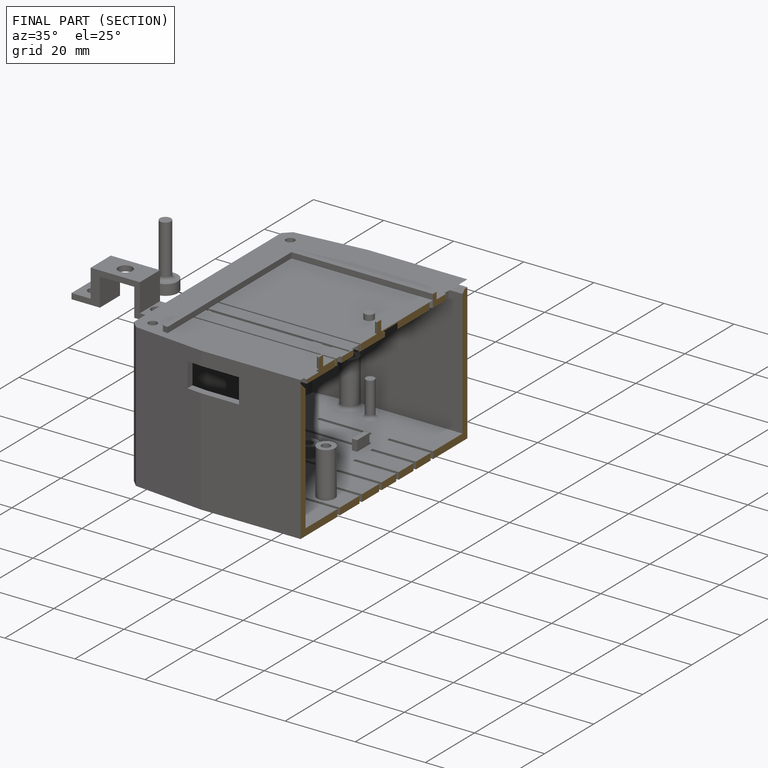
[diagram: finished part — half-section view (interior)]
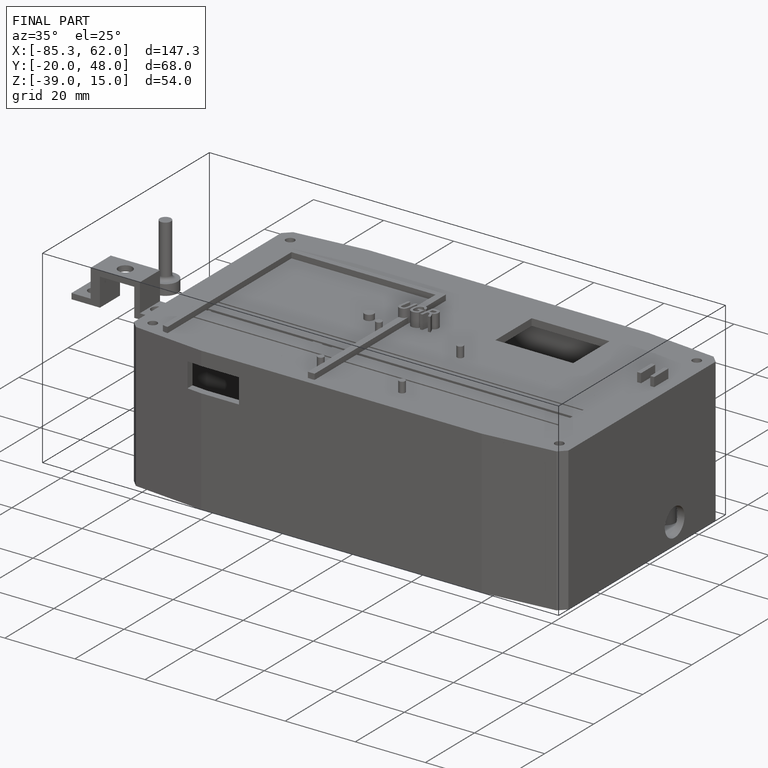
[diagram: finished part — iso view with bounding-box wireframe]
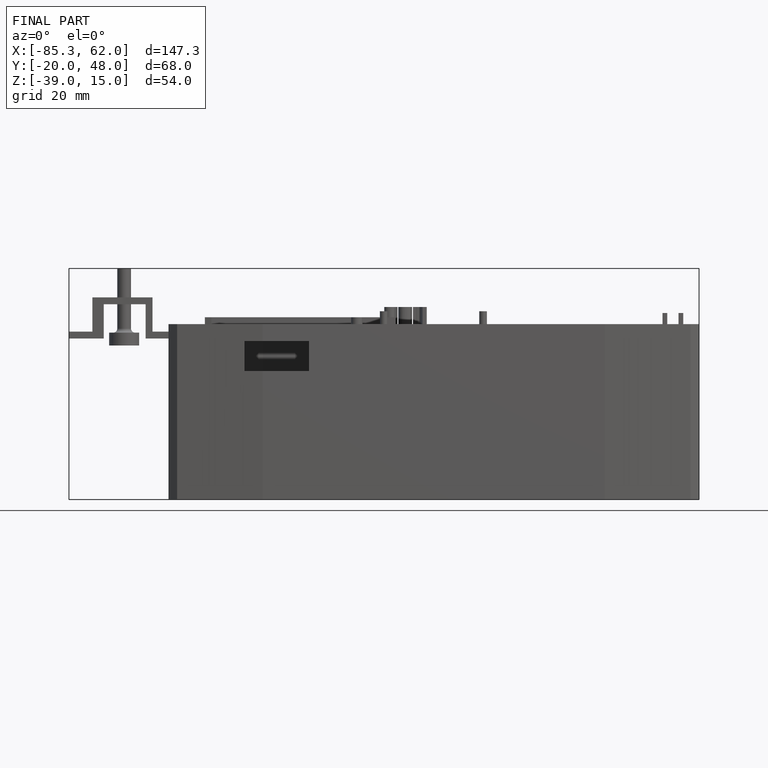
[diagram: finished part — front view with bounding-box wireframe]
